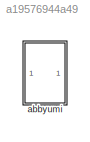
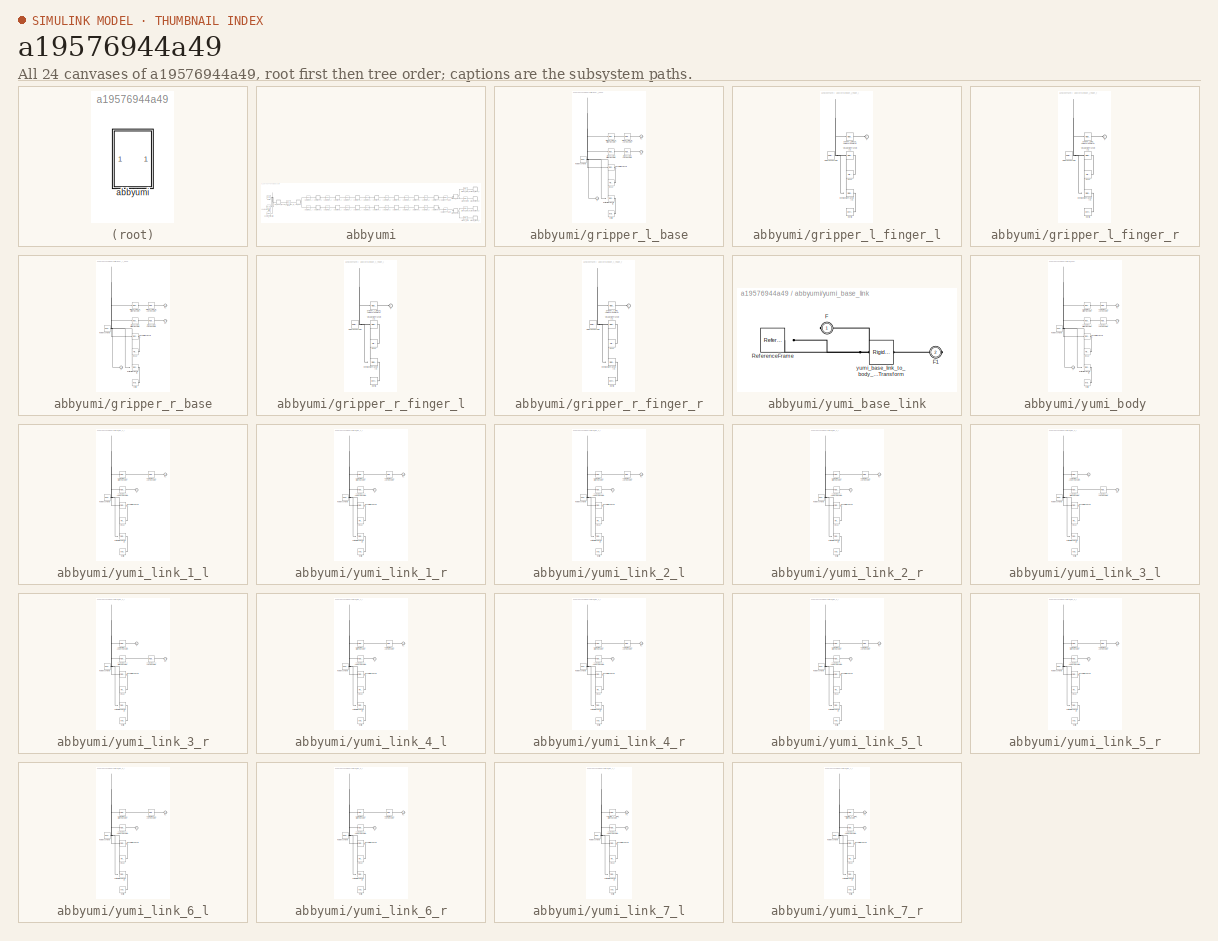
[diagram: thumbnail index - all 24 canvases of the model, root first then tree order]
MODEL slx_a19576944a49
KIND model
CONFIG AbsTol = auto
CONFIG EnableMultiTasking = off
CONFIG FixedStep = auto
CONFIG MaxStep = auto
CONFIG MinStep = auto
CONFIG RelTol = 1e-3
CONFIG SampleTimeConstraint = Unconstrained
CONFIG SolverName = VariableStepAuto
CONFIG StartTime = 0.0
CONFIG StopTime = 10.0
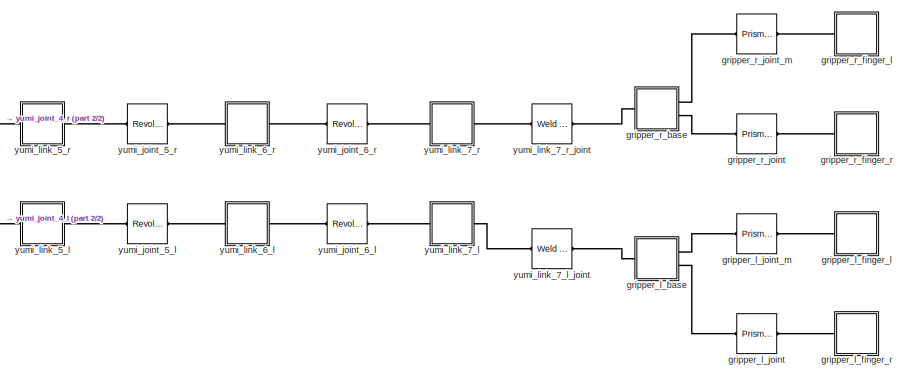
[diagram: abbyumi - part 1/2, right side, full height]
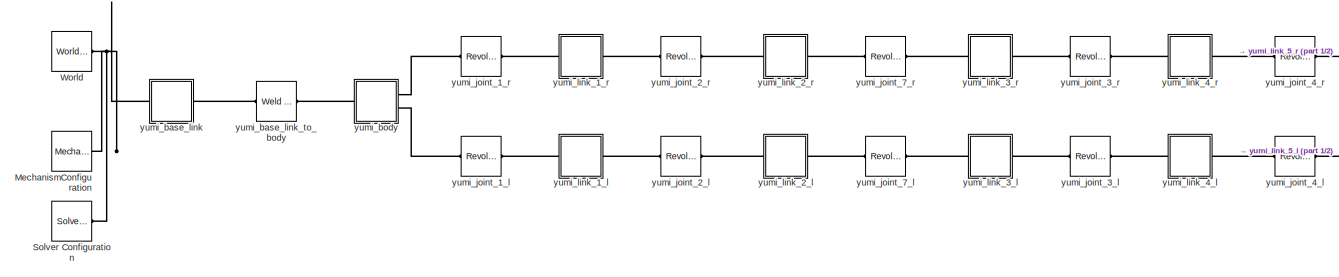
[diagram: abbyumi - part 2/2, middle left region]
BLOCK [SubSystem] abbyumi
  Ports = []
  RequestExecContextInheritance = off
BLOCK [Reference] abbyumi/MechanismConfiguration  REF=sm_lib/Utilities/Mechanism
Configuration
  Ports = [0, 0, 0, 0, 0, 0, 1]
  SourceBlock = sm_lib/Utilities/Mechanism\nConfiguration
  SourceProductBaseCode = MS
  SourceType = Mechanism\nConfiguration
BLOCK [Reference] abbyumi/Solver Configuration  REF=nesl_utility/Solver
Configuration
  Ports = [0, 0, 0, 0, 0, 0, 1]
  SourceBlock = nesl_utility/Solver\nConfiguration
  SourceProductBaseCode = SS
  SourceType = Solver\nConfiguration
BLOCK [Reference] abbyumi/World  REF=sm_lib/Frames and
Transforms/World Frame
  Ports = [0, 0, 0, 0, 0, 0, 1]
  SourceBlock = sm_lib/Frames and\nTransforms/World Frame
  SourceProductBaseCode = MS
  SourceType = World Frame
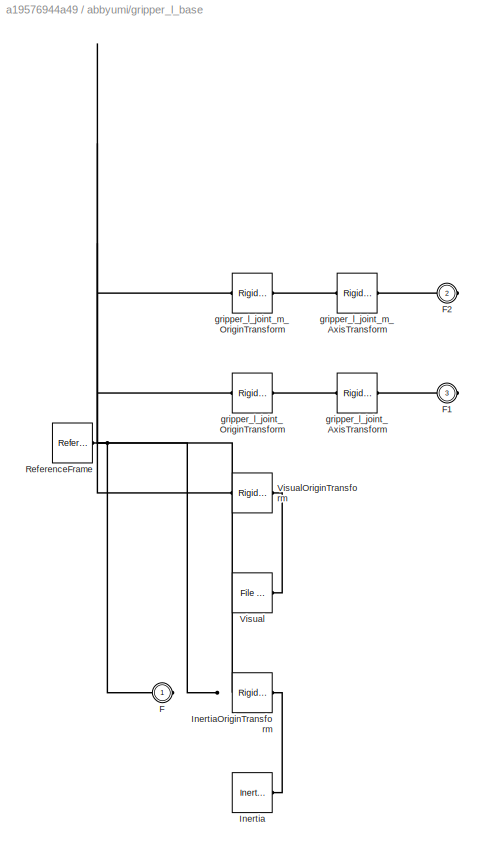
BLOCK [SubSystem] abbyumi/gripper_l_base
  Ports = [0, 0, 0, 0, 0, 1, 2]
  RequestExecContextInheritance = off
BLOCK [PMIOPort] abbyumi/gripper_l_base/F
  Side = Left
BLOCK [PMIOPort] abbyumi/gripper_l_base/F1
  Port = 3
  Side = Right
BLOCK [PMIOPort] abbyumi/gripper_l_base/F2
  Port = 2
  Side = Right
BLOCK [Reference] abbyumi/gripper_l_base/Inertia  REF=sm_lib/Body Elements/Inertia
  Ports = [0, 0, 0, 0, 0, 0, 1]
  SourceBlock = sm_lib/Body Elements/Inertia
  SourceProductBaseCode = MS
  SourceType = Inertia
BLOCK [Reference] abbyumi/gripper_l_base/InertiaOriginTransform  REF=sm_lib/Frames and
Transforms/Rigid
Transform
  Ports = [0, 0, 0, 0, 0, 1, 1]
  SourceBlock = sm_lib/Frames and\nTransforms/Rigid\nTransform
  SourceProductBaseCode = MS
  SourceType = Rigid\nTransform
BLOCK [Reference] abbyumi/gripper_l_base/ReferenceFrame  REF=sm_lib/Frames and
Transforms/Reference
Frame
  Ports = [0, 0, 0, 0, 0, 0, 1]
  SourceBlock = sm_lib/Frames and\nTransforms/Reference\nFrame
  SourceProductBaseCode = MS
  SourceType = Reference\nFrame
BLOCK [Reference] abbyumi/gripper_l_base/Visual  REF=sm_lib/Body Elements/File Solid
  Ports = [0, 0, 0, 0, 0, 0, 1]
  SourceBlock = sm_lib/Body Elements/File Solid
  SourceProductBaseCode = MS
  SourceType = File Solid
BLOCK [Reference] abbyumi/gripper_l_base/VisualOriginTransform  REF=sm_lib/Frames and
Transforms/Rigid
Transform
  Ports = [0, 0, 0, 0, 0, 1, 1]
  SourceBlock = sm_lib/Frames and\nTransforms/Rigid\nTransform
  SourceProductBaseCode = MS
  SourceType = Rigid\nTransform
BLOCK [Reference] abbyumi/gripper_l_base/gripper_l_joint_AxisTransform  REF=sm_lib/Frames and
Transforms/Rigid
Transform
  Ports = [0, 0, 0, 0, 0, 1, 1]
  SourceBlock = sm_lib/Frames and\nTransforms/Rigid\nTransform
  SourceProductBaseCode = MS
  SourceType = Rigid\nTransform
BLOCK [Reference] abbyumi/gripper_l_base/gripper_l_joint_OriginTransform  REF=sm_lib/Frames and
Transforms/Rigid
Transform
  Ports = [0, 0, 0, 0, 0, 1, 1]
  SourceBlock = sm_lib/Frames and\nTransforms/Rigid\nTransform
  SourceProductBaseCode = MS
  SourceType = Rigid\nTransform
BLOCK [Reference] abbyumi/gripper_l_base/gripper_l_joint_m_AxisTransform  REF=sm_lib/Frames and
Transforms/Rigid
Transform
  Ports = [0, 0, 0, 0, 0, 1, 1]
  SourceBlock = sm_lib/Frames and\nTransforms/Rigid\nTransform
  SourceProductBaseCode = MS
  SourceType = Rigid\nTransform
BLOCK [Reference] abbyumi/gripper_l_base/gripper_l_joint_m_OriginTransform  REF=sm_lib/Frames and
Transforms/Rigid
Transform
  Ports = [0, 0, 0, 0, 0, 1, 1]
  SourceBlock = sm_lib/Frames and\nTransforms/Rigid\nTransform
  SourceProductBaseCode = MS
  SourceType = Rigid\nTransform
BLOCK [SubSystem] abbyumi/gripper_l_finger_l
  Ports = [0, 0, 0, 0, 0, 1]
  RequestExecContextInheritance = off
BLOCK [PMIOPort] abbyumi/gripper_l_finger_l/F
  Side = Left
BLOCK [Reference] abbyumi/gripper_l_finger_l/Inertia  REF=sm_lib/Body Elements/Inertia
  Ports = [0, 0, 0, 0, 0, 0, 1]
  SourceBlock = sm_lib/Body Elements/Inertia
  SourceProductBaseCode = MS
  SourceType = Inertia
BLOCK [Reference] abbyumi/gripper_l_finger_l/InertiaOriginTransform  REF=sm_lib/Frames and
Transforms/Rigid
Transform
  Ports = [0, 0, 0, 0, 0, 1, 1]
  SourceBlock = sm_lib/Frames and\nTransforms/Rigid\nTransform
  SourceProductBaseCode = MS
  SourceType = Rigid\nTransform
BLOCK [Reference] abbyumi/gripper_l_finger_l/ReferenceFrame  REF=sm_lib/Frames and
Transforms/Reference
Frame
  Ports = [0, 0, 0, 0, 0, 0, 1]
  SourceBlock = sm_lib/Frames and\nTransforms/Reference\nFrame
  SourceProductBaseCode = MS
  SourceType = Reference\nFrame
BLOCK [Reference] abbyumi/gripper_l_finger_l/Visual  REF=sm_lib/Body Elements/File Solid
  Ports = [0, 0, 0, 0, 0, 0, 1]
  SourceBlock = sm_lib/Body Elements/File Solid
  SourceProductBaseCode = MS
  SourceType = File Solid
BLOCK [Reference] abbyumi/gripper_l_finger_l/VisualOriginTransform  REF=sm_lib/Frames and
Transforms/Rigid
Transform
  Ports = [0, 0, 0, 0, 0, 1, 1]
  SourceBlock = sm_lib/Frames and\nTransforms/Rigid\nTransform
  SourceProductBaseCode = MS
  SourceType = Rigid\nTransform
BLOCK [Reference] abbyumi/gripper_l_finger_l/gripper_l_joint_m_AxisInvTransform  REF=sm_lib/Frames and
Transforms/Rigid
Transform
  Ports = [0, 0, 0, 0, 0, 1, 1]
  SourceBlock = sm_lib/Frames and\nTransforms/Rigid\nTransform
  SourceProductBaseCode = MS
  SourceType = Rigid\nTransform
BLOCK [SubSystem] abbyumi/gripper_l_finger_r
  Ports = [0, 0, 0, 0, 0, 1]
  RequestExecContextInheritance = off
BLOCK [PMIOPort] abbyumi/gripper_l_finger_r/F
  Side = Left
BLOCK [Reference] abbyumi/gripper_l_finger_r/Inertia  REF=sm_lib/Body Elements/Inertia
  Ports = [0, 0, 0, 0, 0, 0, 1]
  SourceBlock = sm_lib/Body Elements/Inertia
  SourceProductBaseCode = MS
  SourceType = Inertia
BLOCK [Reference] abbyumi/gripper_l_finger_r/InertiaOriginTransform  REF=sm_lib/Frames and
Transforms/Rigid
Transform
  Ports = [0, 0, 0, 0, 0, 1, 1]
  SourceBlock = sm_lib/Frames and\nTransforms/Rigid\nTransform
  SourceProductBaseCode = MS
  SourceType = Rigid\nTransform
BLOCK [Reference] abbyumi/gripper_l_finger_r/ReferenceFrame  REF=sm_lib/Frames and
Transforms/Reference
Frame
  Ports = [0, 0, 0, 0, 0, 0, 1]
  SourceBlock = sm_lib/Frames and\nTransforms/Reference\nFrame
  SourceProductBaseCode = MS
  SourceType = Reference\nFrame
BLOCK [Reference] abbyumi/gripper_l_finger_r/Visual  REF=sm_lib/Body Elements/File Solid
  Ports = [0, 0, 0, 0, 0, 0, 1]
  SourceBlock = sm_lib/Body Elements/File Solid
  SourceProductBaseCode = MS
  SourceType = File Solid
BLOCK [Reference] abbyumi/gripper_l_finger_r/VisualOriginTransform  REF=sm_lib/Frames and
Transforms/Rigid
Transform
  Ports = [0, 0, 0, 0, 0, 1, 1]
  SourceBlock = sm_lib/Frames and\nTransforms/Rigid\nTransform
  SourceProductBaseCode = MS
  SourceType = Rigid\nTransform
BLOCK [Reference] abbyumi/gripper_l_finger_r/gripper_l_joint_AxisInvTransform  REF=sm_lib/Frames and
Transforms/Rigid
Transform
  Ports = [0, 0, 0, 0, 0, 1, 1]
  SourceBlock = sm_lib/Frames and\nTransforms/Rigid\nTransform
  SourceProductBaseCode = MS
  SourceType = Rigid\nTransform
BLOCK [Reference] abbyumi/gripper_l_joint  REF=sm_lib/Joints/Prismatic
Joint
  Ports = [0, 0, 0, 0, 0, 1, 1]
  SourceBlock = sm_lib/Joints/Prismatic\nJoint
  SourceProductBaseCode = MS
  SourceType = Prismatic\nJoint
BLOCK [Reference] abbyumi/gripper_l_joint_m  REF=sm_lib/Joints/Prismatic
Joint
  Ports = [0, 0, 0, 0, 0, 1, 1]
  SourceBlock = sm_lib/Joints/Prismatic\nJoint
  SourceProductBaseCode = MS
  SourceType = Prismatic\nJoint
BLOCK [SubSystem] abbyumi/gripper_r_base
  Ports = [0, 0, 0, 0, 0, 1, 2]
  RequestExecContextInheritance = off
BLOCK [PMIOPort] abbyumi/gripper_r_base/F
  Side = Left
BLOCK [PMIOPort] abbyumi/gripper_r_base/F1
  Port = 3
  Side = Right
BLOCK [PMIOPort] abbyumi/gripper_r_base/F2
  Port = 2
  Side = Right
BLOCK [Reference] abbyumi/gripper_r_base/Inertia  REF=sm_lib/Body Elements/Inertia
  Ports = [0, 0, 0, 0, 0, 0, 1]
  SourceBlock = sm_lib/Body Elements/Inertia
  SourceProductBaseCode = MS
  SourceType = Inertia
BLOCK [Reference] abbyumi/gripper_r_base/InertiaOriginTransform  REF=sm_lib/Frames and
Transforms/Rigid
Transform
  Ports = [0, 0, 0, 0, 0, 1, 1]
  SourceBlock = sm_lib/Frames and\nTransforms/Rigid\nTransform
  SourceProductBaseCode = MS
  SourceType = Rigid\nTransform
BLOCK [Reference] abbyumi/gripper_r_base/ReferenceFrame  REF=sm_lib/Frames and
Transforms/Reference
Frame
  Ports = [0, 0, 0, 0, 0, 0, 1]
  SourceBlock = sm_lib/Frames and\nTransforms/Reference\nFrame
  SourceProductBaseCode = MS
  SourceType = Reference\nFrame
BLOCK [Reference] abbyumi/gripper_r_base/Visual  REF=sm_lib/Body Elements/File Solid
  Ports = [0, 0, 0, 0, 0, 0, 1]
  SourceBlock = sm_lib/Body Elements/File Solid
  SourceProductBaseCode = MS
  SourceType = File Solid
BLOCK [Reference] abbyumi/gripper_r_base/VisualOriginTransform  REF=sm_lib/Frames and
Transforms/Rigid
Transform
  Ports = [0, 0, 0, 0, 0, 1, 1]
  SourceBlock = sm_lib/Frames and\nTransforms/Rigid\nTransform
  SourceProductBaseCode = MS
  SourceType = Rigid\nTransform
BLOCK [Reference] abbyumi/gripper_r_base/gripper_r_joint_AxisTransform  REF=sm_lib/Frames and
Transforms/Rigid
Transform
  Ports = [0, 0, 0, 0, 0, 1, 1]
  SourceBlock = sm_lib/Frames and\nTransforms/Rigid\nTransform
  SourceProductBaseCode = MS
  SourceType = Rigid\nTransform
BLOCK [Reference] abbyumi/gripper_r_base/gripper_r_joint_OriginTransform  REF=sm_lib/Frames and
Transforms/Rigid
Transform
  Ports = [0, 0, 0, 0, 0, 1, 1]
  SourceBlock = sm_lib/Frames and\nTransforms/Rigid\nTransform
  SourceProductBaseCode = MS
  SourceType = Rigid\nTransform
BLOCK [Reference] abbyumi/gripper_r_base/gripper_r_joint_m_AxisTransform  REF=sm_lib/Frames and
Transforms/Rigid
Transform
  Ports = [0, 0, 0, 0, 0, 1, 1]
  SourceBlock = sm_lib/Frames and\nTransforms/Rigid\nTransform
  SourceProductBaseCode = MS
  SourceType = Rigid\nTransform
BLOCK [Reference] abbyumi/gripper_r_base/gripper_r_joint_m_OriginTransform  REF=sm_lib/Frames and
Transforms/Rigid
Transform
  Ports = [0, 0, 0, 0, 0, 1, 1]
  SourceBlock = sm_lib/Frames and\nTransforms/Rigid\nTransform
  SourceProductBaseCode = MS
  SourceType = Rigid\nTransform
BLOCK [SubSystem] abbyumi/gripper_r_finger_l
  Ports = [0, 0, 0, 0, 0, 1]
  RequestExecContextInheritance = off
BLOCK [PMIOPort] abbyumi/gripper_r_finger_l/F
  Side = Left
BLOCK [Reference] abbyumi/gripper_r_finger_l/Inertia  REF=sm_lib/Body Elements/Inertia
  Ports = [0, 0, 0, 0, 0, 0, 1]
  SourceBlock = sm_lib/Body Elements/Inertia
  SourceProductBaseCode = MS
  SourceType = Inertia
BLOCK [Reference] abbyumi/gripper_r_finger_l/InertiaOriginTransform  REF=sm_lib/Frames and
Transforms/Rigid
Transform
  Ports = [0, 0, 0, 0, 0, 1, 1]
  SourceBlock = sm_lib/Frames and\nTransforms/Rigid\nTransform
  SourceProductBaseCode = MS
  SourceType = Rigid\nTransform
BLOCK [Reference] abbyumi/gripper_r_finger_l/ReferenceFrame  REF=sm_lib/Frames and
Transforms/Reference
Frame
  Ports = [0, 0, 0, 0, 0, 0, 1]
  SourceBlock = sm_lib/Frames and\nTransforms/Reference\nFrame
  SourceProductBaseCode = MS
  SourceType = Reference\nFrame
BLOCK [Reference] abbyumi/gripper_r_finger_l/Visual  REF=sm_lib/Body Elements/File Solid
  Ports = [0, 0, 0, 0, 0, 0, 1]
  SourceBlock = sm_lib/Body Elements/File Solid
  SourceProductBaseCode = MS
  SourceType = File Solid
BLOCK [Reference] abbyumi/gripper_r_finger_l/VisualOriginTransform  REF=sm_lib/Frames and
Transforms/Rigid
Transform
  Ports = [0, 0, 0, 0, 0, 1, 1]
  SourceBlock = sm_lib/Frames and\nTransforms/Rigid\nTransform
  SourceProductBaseCode = MS
  SourceType = Rigid\nTransform
BLOCK [Reference] abbyumi/gripper_r_finger_l/gripper_r_joint_m_AxisInvTransform  REF=sm_lib/Frames and
Transforms/Rigid
Transform
  Ports = [0, 0, 0, 0, 0, 1, 1]
  SourceBlock = sm_lib/Frames and\nTransforms/Rigid\nTransform
  SourceProductBaseCode = MS
  SourceType = Rigid\nTransform
BLOCK [SubSystem] abbyumi/gripper_r_finger_r
  Ports = [0, 0, 0, 0, 0, 1]
  RequestExecContextInheritance = off
BLOCK [PMIOPort] abbyumi/gripper_r_finger_r/F
  Side = Left
BLOCK [Reference] abbyumi/gripper_r_finger_r/Inertia  REF=sm_lib/Body Elements/Inertia
  Ports = [0, 0, 0, 0, 0, 0, 1]
  SourceBlock = sm_lib/Body Elements/Inertia
  SourceProductBaseCode = MS
  SourceType = Inertia
BLOCK [Reference] abbyumi/gripper_r_finger_r/InertiaOriginTransform  REF=sm_lib/Frames and
Transforms/Rigid
Transform
  Ports = [0, 0, 0, 0, 0, 1, 1]
  SourceBlock = sm_lib/Frames and\nTransforms/Rigid\nTransform
  SourceProductBaseCode = MS
  SourceType = Rigid\nTransform
BLOCK [Reference] abbyumi/gripper_r_finger_r/ReferenceFrame  REF=sm_lib/Frames and
Transforms/Reference
Frame
  Ports = [0, 0, 0, 0, 0, 0, 1]
  SourceBlock = sm_lib/Frames and\nTransforms/Reference\nFrame
  SourceProductBaseCode = MS
  SourceType = Reference\nFrame
BLOCK [Reference] abbyumi/gripper_r_finger_r/Visual  REF=sm_lib/Body Elements/File Solid
  Ports = [0, 0, 0, 0, 0, 0, 1]
  SourceBlock = sm_lib/Body Elements/File Solid
  SourceProductBaseCode = MS
  SourceType = File Solid
BLOCK [Reference] abbyumi/gripper_r_finger_r/VisualOriginTransform  REF=sm_lib/Frames and
Transforms/Rigid
Transform
  Ports = [0, 0, 0, 0, 0, 1, 1]
  SourceBlock = sm_lib/Frames and\nTransforms/Rigid\nTransform
  SourceProductBaseCode = MS
  SourceType = Rigid\nTransform
BLOCK [Reference] abbyumi/gripper_r_finger_r/gripper_r_joint_AxisInvTransform  REF=sm_lib/Frames and
Transforms/Rigid
Transform
  Ports = [0, 0, 0, 0, 0, 1, 1]
  SourceBlock = sm_lib/Frames and\nTransforms/Rigid\nTransform
  SourceProductBaseCode = MS
  SourceType = Rigid\nTransform
BLOCK [Reference] abbyumi/gripper_r_joint  REF=sm_lib/Joints/Prismatic
Joint
  Ports = [0, 0, 0, 0, 0, 1, 1]
  SourceBlock = sm_lib/Joints/Prismatic\nJoint
  SourceProductBaseCode = MS
  SourceType = Prismatic\nJoint
BLOCK [Reference] abbyumi/gripper_r_joint_m  REF=sm_lib/Joints/Prismatic
Joint
  Ports = [0, 0, 0, 0, 0, 1, 1]
  SourceBlock = sm_lib/Joints/Prismatic\nJoint
  SourceProductBaseCode = MS
  SourceType = Prismatic\nJoint
BLOCK [SubSystem] abbyumi/yumi_base_link
  Ports = [0, 0, 0, 0, 0, 1, 1]
  RequestExecContextInheritance = off
BLOCK [PMIOPort] abbyumi/yumi_base_link/F
  Side = Left
BLOCK [PMIOPort] abbyumi/yumi_base_link/F1
  Port = 2
  Side = Right
BLOCK [Reference] abbyumi/yumi_base_link/ReferenceFrame  REF=sm_lib/Frames and
Transforms/Reference
Frame
  Ports = [0, 0, 0, 0, 0, 0, 1]
  SourceBlock = sm_lib/Frames and\nTransforms/Reference\nFrame
  SourceProductBaseCode = MS
  SourceType = Reference\nFrame
BLOCK [Reference] abbyumi/yumi_base_link/yumi_base_link_to_body_OriginTransform  REF=sm_lib/Frames and
Transforms/Rigid
Transform
  Ports = [0, 0, 0, 0, 0, 1, 1]
  SourceBlock = sm_lib/Frames and\nTransforms/Rigid\nTransform
  SourceProductBaseCode = MS
  SourceType = Rigid\nTransform
BLOCK [Reference] abbyumi/yumi_base_link_to_body  REF=sm_lib/Joints/Weld Joint
  Ports = [0, 0, 0, 0, 0, 1, 1]
  SourceBlock = sm_lib/Joints/Weld Joint
  SourceProductBaseCode = MS
  SourceType = Weld Joint
BLOCK [SubSystem] abbyumi/yumi_body
  Ports = [0, 0, 0, 0, 0, 1, 2]
  RequestExecContextInheritance = off
BLOCK [PMIOPort] abbyumi/yumi_body/F
  Side = Left
BLOCK [PMIOPort] abbyumi/yumi_body/F1
  Port = 3
  Side = Right
BLOCK [PMIOPort] abbyumi/yumi_body/F2
  Port = 2
  Side = Right
BLOCK [Reference] abbyumi/yumi_body/Inertia  REF=sm_lib/Body Elements/Inertia
  Ports = [0, 0, 0, 0, 0, 0, 1]
  SourceBlock = sm_lib/Body Elements/Inertia
  SourceProductBaseCode = MS
  SourceType = Inertia
BLOCK [Reference] abbyumi/yumi_body/InertiaOriginTransform  REF=sm_lib/Frames and
Transforms/Rigid
Transform
  Ports = [0, 0, 0, 0, 0, 1, 1]
  SourceBlock = sm_lib/Frames and\nTransforms/Rigid\nTransform
  SourceProductBaseCode = MS
  SourceType = Rigid\nTransform
BLOCK [Reference] abbyumi/yumi_body/ReferenceFrame  REF=sm_lib/Frames and
Transforms/Reference
Frame
  Ports = [0, 0, 0, 0, 0, 0, 1]
  SourceBlock = sm_lib/Frames and\nTransforms/Reference\nFrame
  SourceProductBaseCode = MS
  SourceType = Reference\nFrame
BLOCK [Reference] abbyumi/yumi_body/Visual  REF=sm_lib/Body Elements/File Solid
  Ports = [0, 0, 0, 0, 0, 0, 1]
  SourceBlock = sm_lib/Body Elements/File Solid
  SourceProductBaseCode = MS
  SourceType = File Solid
BLOCK [Reference] abbyumi/yumi_body/VisualOriginTransform  REF=sm_lib/Frames and
Transforms/Rigid
Transform
  Ports = [0, 0, 0, 0, 0, 1, 1]
  SourceBlock = sm_lib/Frames and\nTransforms/Rigid\nTransform
  SourceProductBaseCode = MS
  SourceType = Rigid\nTransform
BLOCK [Reference] abbyumi/yumi_body/yumi_joint_1_l_AxisTransform  REF=sm_lib/Frames and
Transforms/Rigid
Transform
  Ports = [0, 0, 0, 0, 0, 1, 1]
  SourceBlock = sm_lib/Frames and\nTransforms/Rigid\nTransform
  SourceProductBaseCode = MS
  SourceType = Rigid\nTransform
BLOCK [Reference] abbyumi/yumi_body/yumi_joint_1_l_OriginTransform  REF=sm_lib/Frames and
Transforms/Rigid
Transform
  Ports = [0, 0, 0, 0, 0, 1, 1]
  SourceBlock = sm_lib/Frames and\nTransforms/Rigid\nTransform
  SourceProductBaseCode = MS
  SourceType = Rigid\nTransform
BLOCK [Reference] abbyumi/yumi_body/yumi_joint_1_r_AxisTransform  REF=sm_lib/Frames and
Transforms/Rigid
Transform
  Ports = [0, 0, 0, 0, 0, 1, 1]
  SourceBlock = sm_lib/Frames and\nTransforms/Rigid\nTransform
  SourceProductBaseCode = MS
  SourceType = Rigid\nTransform
BLOCK [Reference] abbyumi/yumi_body/yumi_joint_1_r_OriginTransform  REF=sm_lib/Frames and
Transforms/Rigid
Transform
  Ports = [0, 0, 0, 0, 0, 1, 1]
  SourceBlock = sm_lib/Frames and\nTransforms/Rigid\nTransform
  SourceProductBaseCode = MS
  SourceType = Rigid\nTransform
BLOCK [Reference] abbyumi/yumi_joint_1_l  REF=sm_lib/Joints/Revolute Joint
  Ports = [0, 0, 0, 0, 0, 1, 1]
  SourceBlock = sm_lib/Joints/Revolute Joint
  SourceProductBaseCode = MS
  SourceType = Revolute Joint
BLOCK [Reference] abbyumi/yumi_joint_1_r  REF=sm_lib/Joints/Revolute Joint
  Ports = [0, 0, 0, 0, 0, 1, 1]
  SourceBlock = sm_lib/Joints/Revolute Joint
  SourceProductBaseCode = MS
  SourceType = Revolute Joint
BLOCK [Reference] abbyumi/yumi_joint_2_l  REF=sm_lib/Joints/Revolute Joint
  Ports = [0, 0, 0, 0, 0, 1, 1]
  SourceBlock = sm_lib/Joints/Revolute Joint
  SourceProductBaseCode = MS
  SourceType = Revolute Joint
BLOCK [Reference] abbyumi/yumi_joint_2_r  REF=sm_lib/Joints/Revolute Joint
  Ports = [0, 0, 0, 0, 0, 1, 1]
  SourceBlock = sm_lib/Joints/Revolute Joint
  SourceProductBaseCode = MS
  SourceType = Revolute Joint
BLOCK [Reference] abbyumi/yumi_joint_3_l  REF=sm_lib/Joints/Revolute Joint
  Ports = [0, 0, 0, 0, 0, 1, 1]
  SourceBlock = sm_lib/Joints/Revolute Joint
  SourceProductBaseCode = MS
  SourceType = Revolute Joint
BLOCK [Reference] abbyumi/yumi_joint_3_r  REF=sm_lib/Joints/Revolute Joint
  Ports = [0, 0, 0, 0, 0, 1, 1]
  SourceBlock = sm_lib/Joints/Revolute Joint
  SourceProductBaseCode = MS
  SourceType = Revolute Joint
BLOCK [Reference] abbyumi/yumi_joint_4_l  REF=sm_lib/Joints/Revolute Joint
  Ports = [0, 0, 0, 0, 0, 1, 1]
  SourceBlock = sm_lib/Joints/Revolute Joint
  SourceProductBaseCode = MS
  SourceType = Revolute Joint
BLOCK [Reference] abbyumi/yumi_joint_4_r  REF=sm_lib/Joints/Revolute Joint
  Ports = [0, 0, 0, 0, 0, 1, 1]
  SourceBlock = sm_lib/Joints/Revolute Joint
  SourceProductBaseCode = MS
  SourceType = Revolute Joint
BLOCK [Reference] abbyumi/yumi_joint_5_l  REF=sm_lib/Joints/Revolute Joint
  Ports = [0, 0, 0, 0, 0, 1, 1]
  SourceBlock = sm_lib/Joints/Revolute Joint
  SourceProductBaseCode = MS
  SourceType = Revolute Joint
BLOCK [Reference] abbyumi/yumi_joint_5_r  REF=sm_lib/Joints/Revolute Joint
  Ports = [0, 0, 0, 0, 0, 1, 1]
  SourceBlock = sm_lib/Joints/Revolute Joint
  SourceProductBaseCode = MS
  SourceType = Revolute Joint
BLOCK [Reference] abbyumi/yumi_joint_6_l  REF=sm_lib/Joints/Revolute Joint
  Ports = [0, 0, 0, 0, 0, 1, 1]
  SourceBlock = sm_lib/Joints/Revolute Joint
  SourceProductBaseCode = MS
  SourceType = Revolute Joint
BLOCK [Reference] abbyumi/yumi_joint_6_r  REF=sm_lib/Joints/Revolute Joint
  Ports = [0, 0, 0, 0, 0, 1, 1]
  SourceBlock = sm_lib/Joints/Revolute Joint
  SourceProductBaseCode = MS
  SourceType = Revolute Joint
BLOCK [Reference] abbyumi/yumi_joint_7_l  REF=sm_lib/Joints/Revolute Joint
  Ports = [0, 0, 0, 0, 0, 1, 1]
  SourceBlock = sm_lib/Joints/Revolute Joint
  SourceProductBaseCode = MS
  SourceType = Revolute Joint
BLOCK [Reference] abbyumi/yumi_joint_7_r  REF=sm_lib/Joints/Revolute Joint
  Ports = [0, 0, 0, 0, 0, 1, 1]
  SourceBlock = sm_lib/Joints/Revolute Joint
  SourceProductBaseCode = MS
  SourceType = Revolute Joint
BLOCK [SubSystem] abbyumi/yumi_link_1_l
  Ports = [0, 0, 0, 0, 0, 1, 1]
  RequestExecContextInheritance = off
BLOCK [PMIOPort] abbyumi/yumi_link_1_l/F
  Side = Left
BLOCK [PMIOPort] abbyumi/yumi_link_1_l/F1
  Port = 2
  Side = Right
BLOCK [Reference] abbyumi/yumi_link_1_l/Inertia  REF=sm_lib/Body Elements/Inertia
  Ports = [0, 0, 0, 0, 0, 0, 1]
  SourceBlock = sm_lib/Body Elements/Inertia
  SourceProductBaseCode = MS
  SourceType = Inertia
BLOCK [Reference] abbyumi/yumi_link_1_l/InertiaOriginTransform  REF=sm_lib/Frames and
Transforms/Rigid
Transform
  Ports = [0, 0, 0, 0, 0, 1, 1]
  SourceBlock = sm_lib/Frames and\nTransforms/Rigid\nTransform
  SourceProductBaseCode = MS
  SourceType = Rigid\nTransform
BLOCK [Reference] abbyumi/yumi_link_1_l/ReferenceFrame  REF=sm_lib/Frames and
Transforms/Reference
Frame
  Ports = [0, 0, 0, 0, 0, 0, 1]
  SourceBlock = sm_lib/Frames and\nTransforms/Reference\nFrame
  SourceProductBaseCode = MS
  SourceType = Reference\nFrame
BLOCK [Reference] abbyumi/yumi_link_1_l/Visual  REF=sm_lib/Body Elements/File Solid
  Ports = [0, 0, 0, 0, 0, 0, 1]
  SourceBlock = sm_lib/Body Elements/File Solid
  SourceProductBaseCode = MS
  SourceType = File Solid
BLOCK [Reference] abbyumi/yumi_link_1_l/VisualOriginTransform  REF=sm_lib/Frames and
Transforms/Rigid
Transform
  Ports = [0, 0, 0, 0, 0, 1, 1]
  SourceBlock = sm_lib/Frames and\nTransforms/Rigid\nTransform
  SourceProductBaseCode = MS
  SourceType = Rigid\nTransform
BLOCK [Reference] abbyumi/yumi_link_1_l/yumi_joint_1_l_AxisInvTransform  REF=sm_lib/Frames and
Transforms/Rigid
Transform
  Ports = [0, 0, 0, 0, 0, 1, 1]
  SourceBlock = sm_lib/Frames and\nTransforms/Rigid\nTransform
  SourceProductBaseCode = MS
  SourceType = Rigid\nTransform
BLOCK [Reference] abbyumi/yumi_link_1_l/yumi_joint_2_l_AxisTransform  REF=sm_lib/Frames and
Transforms/Rigid
Transform
  Ports = [0, 0, 0, 0, 0, 1, 1]
  SourceBlock = sm_lib/Frames and\nTransforms/Rigid\nTransform
  SourceProductBaseCode = MS
  SourceType = Rigid\nTransform
BLOCK [Reference] abbyumi/yumi_link_1_l/yumi_joint_2_l_OriginTransform  REF=sm_lib/Frames and
Transforms/Rigid
Transform
  Ports = [0, 0, 0, 0, 0, 1, 1]
  SourceBlock = sm_lib/Frames and\nTransforms/Rigid\nTransform
  SourceProductBaseCode = MS
  SourceType = Rigid\nTransform
BLOCK [SubSystem] abbyumi/yumi_link_1_r
  Ports = [0, 0, 0, 0, 0, 1, 1]
  RequestExecContextInheritance = off
BLOCK [PMIOPort] abbyumi/yumi_link_1_r/F
  Side = Left
BLOCK [PMIOPort] abbyumi/yumi_link_1_r/F1
  Port = 2
  Side = Right
BLOCK [Reference] abbyumi/yumi_link_1_r/Inertia  REF=sm_lib/Body Elements/Inertia
  Ports = [0, 0, 0, 0, 0, 0, 1]
  SourceBlock = sm_lib/Body Elements/Inertia
  SourceProductBaseCode = MS
  SourceType = Inertia
BLOCK [Reference] abbyumi/yumi_link_1_r/InertiaOriginTransform  REF=sm_lib/Frames and
Transforms/Rigid
Transform
  Ports = [0, 0, 0, 0, 0, 1, 1]
  SourceBlock = sm_lib/Frames and\nTransforms/Rigid\nTransform
  SourceProductBaseCode = MS
  SourceType = Rigid\nTransform
BLOCK [Reference] abbyumi/yumi_link_1_r/ReferenceFrame  REF=sm_lib/Frames and
Transforms/Reference
Frame
  Ports = [0, 0, 0, 0, 0, 0, 1]
  SourceBlock = sm_lib/Frames and\nTransforms/Reference\nFrame
  SourceProductBaseCode = MS
  SourceType = Reference\nFrame
BLOCK [Reference] abbyumi/yumi_link_1_r/Visual  REF=sm_lib/Body Elements/File Solid
  Ports = [0, 0, 0, 0, 0, 0, 1]
  SourceBlock = sm_lib/Body Elements/File Solid
  SourceProductBaseCode = MS
  SourceType = File Solid
BLOCK [Reference] abbyumi/yumi_link_1_r/VisualOriginTransform  REF=sm_lib/Frames and
Transforms/Rigid
Transform
  Ports = [0, 0, 0, 0, 0, 1, 1]
  SourceBlock = sm_lib/Frames and\nTransforms/Rigid\nTransform
  SourceProductBaseCode = MS
  SourceType = Rigid\nTransform
BLOCK [Reference] abbyumi/yumi_link_1_r/yumi_joint_1_r_AxisInvTransform  REF=sm_lib/Frames and
Transforms/Rigid
Transform
  Ports = [0, 0, 0, 0, 0, 1, 1]
  SourceBlock = sm_lib/Frames and\nTransforms/Rigid\nTransform
  SourceProductBaseCode = MS
  SourceType = Rigid\nTransform
BLOCK [Reference] abbyumi/yumi_link_1_r/yumi_joint_2_r_AxisTransform  REF=sm_lib/Frames and
Transforms/Rigid
Transform
  Ports = [0, 0, 0, 0, 0, 1, 1]
  SourceBlock = sm_lib/Frames and\nTransforms/Rigid\nTransform
  SourceProductBaseCode = MS
  SourceType = Rigid\nTransform
BLOCK [Reference] abbyumi/yumi_link_1_r/yumi_joint_2_r_OriginTransform  REF=sm_lib/Frames and
Transforms/Rigid
Transform
  Ports = [0, 0, 0, 0, 0, 1, 1]
  SourceBlock = sm_lib/Frames and\nTransforms/Rigid\nTransform
  SourceProductBaseCode = MS
  SourceType = Rigid\nTransform
BLOCK [SubSystem] abbyumi/yumi_link_2_l
  Ports = [0, 0, 0, 0, 0, 1, 1]
  RequestExecContextInheritance = off
BLOCK [PMIOPort] abbyumi/yumi_link_2_l/F
  Side = Left
BLOCK [PMIOPort] abbyumi/yumi_link_2_l/F1
  Port = 2
  Side = Right
BLOCK [Reference] abbyumi/yumi_link_2_l/Inertia  REF=sm_lib/Body Elements/Inertia
  Ports = [0, 0, 0, 0, 0, 0, 1]
  SourceBlock = sm_lib/Body Elements/Inertia
  SourceProductBaseCode = MS
  SourceType = Inertia
BLOCK [Reference] abbyumi/yumi_link_2_l/InertiaOriginTransform  REF=sm_lib/Frames and
Transforms/Rigid
Transform
  Ports = [0, 0, 0, 0, 0, 1, 1]
  SourceBlock = sm_lib/Frames and\nTransforms/Rigid\nTransform
  SourceProductBaseCode = MS
  SourceType = Rigid\nTransform
BLOCK [Reference] abbyumi/yumi_link_2_l/ReferenceFrame  REF=sm_lib/Frames and
Transforms/Reference
Frame
  Ports = [0, 0, 0, 0, 0, 0, 1]
  SourceBlock = sm_lib/Frames and\nTransforms/Reference\nFrame
  SourceProductBaseCode = MS
  SourceType = Reference\nFrame
BLOCK [Reference] abbyumi/yumi_link_2_l/Visual  REF=sm_lib/Body Elements/File Solid
  Ports = [0, 0, 0, 0, 0, 0, 1]
  SourceBlock = sm_lib/Body Elements/File Solid
  SourceProductBaseCode = MS
  SourceType = File Solid
BLOCK [Reference] abbyumi/yumi_link_2_l/VisualOriginTransform  REF=sm_lib/Frames and
Transforms/Rigid
Transform
  Ports = [0, 0, 0, 0, 0, 1, 1]
  SourceBlock = sm_lib/Frames and\nTransforms/Rigid\nTransform
  SourceProductBaseCode = MS
  SourceType = Rigid\nTransform
BLOCK [Reference] abbyumi/yumi_link_2_l/yumi_joint_2_l_AxisInvTransform  REF=sm_lib/Frames and
Transforms/Rigid
Transform
  Ports = [0, 0, 0, 0, 0, 1, 1]
  SourceBlock = sm_lib/Frames and\nTransforms/Rigid\nTransform
  SourceProductBaseCode = MS
  SourceType = Rigid\nTransform
BLOCK [Reference] abbyumi/yumi_link_2_l/yumi_joint_7_l_AxisTransform  REF=sm_lib/Frames and
Transforms/Rigid
Transform
  Ports = [0, 0, 0, 0, 0, 1, 1]
  SourceBlock = sm_lib/Frames and\nTransforms/Rigid\nTransform
  SourceProductBaseCode = MS
  SourceType = Rigid\nTransform
BLOCK [Reference] abbyumi/yumi_link_2_l/yumi_joint_7_l_OriginTransform  REF=sm_lib/Frames and
Transforms/Rigid
Transform
  Ports = [0, 0, 0, 0, 0, 1, 1]
  SourceBlock = sm_lib/Frames and\nTransforms/Rigid\nTransform
  SourceProductBaseCode = MS
  SourceType = Rigid\nTransform
BLOCK [SubSystem] abbyumi/yumi_link_2_r
  Ports = [0, 0, 0, 0, 0, 1, 1]
  RequestExecContextInheritance = off
BLOCK [PMIOPort] abbyumi/yumi_link_2_r/F
  Side = Left
BLOCK [PMIOPort] abbyumi/yumi_link_2_r/F1
  Port = 2
  Side = Right
BLOCK [Reference] abbyumi/yumi_link_2_r/Inertia  REF=sm_lib/Body Elements/Inertia
  Ports = [0, 0, 0, 0, 0, 0, 1]
  SourceBlock = sm_lib/Body Elements/Inertia
  SourceProductBaseCode = MS
  SourceType = Inertia
BLOCK [Reference] abbyumi/yumi_link_2_r/InertiaOriginTransform  REF=sm_lib/Frames and
Transforms/Rigid
Transform
  Ports = [0, 0, 0, 0, 0, 1, 1]
  SourceBlock = sm_lib/Frames and\nTransforms/Rigid\nTransform
  SourceProductBaseCode = MS
  SourceType = Rigid\nTransform
BLOCK [Reference] abbyumi/yumi_link_2_r/ReferenceFrame  REF=sm_lib/Frames and
Transforms/Reference
Frame
  Ports = [0, 0, 0, 0, 0, 0, 1]
  SourceBlock = sm_lib/Frames and\nTransforms/Reference\nFrame
  SourceProductBaseCode = MS
  SourceType = Reference\nFrame
BLOCK [Reference] abbyumi/yumi_link_2_r/Visual  REF=sm_lib/Body Elements/File Solid
  Ports = [0, 0, 0, 0, 0, 0, 1]
  SourceBlock = sm_lib/Body Elements/File Solid
  SourceProductBaseCode = MS
  SourceType = File Solid
BLOCK [Reference] abbyumi/yumi_link_2_r/VisualOriginTransform  REF=sm_lib/Frames and
Transforms/Rigid
Transform
  Ports = [0, 0, 0, 0, 0, 1, 1]
  SourceBlock = sm_lib/Frames and\nTransforms/Rigid\nTransform
  SourceProductBaseCode = MS
  SourceType = Rigid\nTransform
BLOCK [Reference] abbyumi/yumi_link_2_r/yumi_joint_2_r_AxisInvTransform  REF=sm_lib/Frames and
Transforms/Rigid
Transform
  Ports = [0, 0, 0, 0, 0, 1, 1]
  SourceBlock = sm_lib/Frames and\nTransforms/Rigid\nTransform
  SourceProductBaseCode = MS
  SourceType = Rigid\nTransform
BLOCK [Reference] abbyumi/yumi_link_2_r/yumi_joint_7_r_AxisTransform  REF=sm_lib/Frames and
Transforms/Rigid
Transform
  Ports = [0, 0, 0, 0, 0, 1, 1]
  SourceBlock = sm_lib/Frames and\nTransforms/Rigid\nTransform
  SourceProductBaseCode = MS
  SourceType = Rigid\nTransform
BLOCK [Reference] abbyumi/yumi_link_2_r/yumi_joint_7_r_OriginTransform  REF=sm_lib/Frames and
Transforms/Rigid
Transform
  Ports = [0, 0, 0, 0, 0, 1, 1]
  SourceBlock = sm_lib/Frames and\nTransforms/Rigid\nTransform
  SourceProductBaseCode = MS
  SourceType = Rigid\nTransform
BLOCK [SubSystem] abbyumi/yumi_link_3_l
  Ports = [0, 0, 0, 0, 0, 1, 1]
  RequestExecContextInheritance = off
BLOCK [PMIOPort] abbyumi/yumi_link_3_l/F
  Side = Left
BLOCK [PMIOPort] abbyumi/yumi_link_3_l/F1
  Port = 2
  Side = Right
BLOCK [Reference] abbyumi/yumi_link_3_l/Inertia  REF=sm_lib/Body Elements/Inertia
  Ports = [0, 0, 0, 0, 0, 0, 1]
  SourceBlock = sm_lib/Body Elements/Inertia
  SourceProductBaseCode = MS
  SourceType = Inertia
BLOCK [Reference] abbyumi/yumi_link_3_l/InertiaOriginTransform  REF=sm_lib/Frames and
Transforms/Rigid
Transform
  Ports = [0, 0, 0, 0, 0, 1, 1]
  SourceBlock = sm_lib/Frames and\nTransforms/Rigid\nTransform
  SourceProductBaseCode = MS
  SourceType = Rigid\nTransform
BLOCK [Reference] abbyumi/yumi_link_3_l/ReferenceFrame  REF=sm_lib/Frames and
Transforms/Reference
Frame
  Ports = [0, 0, 0, 0, 0, 0, 1]
  SourceBlock = sm_lib/Frames and\nTransforms/Reference\nFrame
  SourceProductBaseCode = MS
  SourceType = Reference\nFrame
BLOCK [Reference] abbyumi/yumi_link_3_l/Visual  REF=sm_lib/Body Elements/File Solid
  Ports = [0, 0, 0, 0, 0, 0, 1]
  SourceBlock = sm_lib/Body Elements/File Solid
  SourceProductBaseCode = MS
  SourceType = File Solid
BLOCK [Reference] abbyumi/yumi_link_3_l/VisualOriginTransform  REF=sm_lib/Frames and
Transforms/Rigid
Transform
  Ports = [0, 0, 0, 0, 0, 1, 1]
  SourceBlock = sm_lib/Frames and\nTransforms/Rigid\nTransform
  SourceProductBaseCode = MS
  SourceType = Rigid\nTransform
BLOCK [Reference] abbyumi/yumi_link_3_l/yumi_joint_3_l_AxisTransform  REF=sm_lib/Frames and
Transforms/Rigid
Transform
  Ports = [0, 0, 0, 0, 0, 1, 1]
  SourceBlock = sm_lib/Frames and\nTransforms/Rigid\nTransform
  SourceProductBaseCode = MS
  SourceType = Rigid\nTransform
BLOCK [Reference] abbyumi/yumi_link_3_l/yumi_joint_3_l_OriginTransform  REF=sm_lib/Frames and
Transforms/Rigid
Transform
  Ports = [0, 0, 0, 0, 0, 1, 1]
  SourceBlock = sm_lib/Frames and\nTransforms/Rigid\nTransform
  SourceProductBaseCode = MS
  SourceType = Rigid\nTransform
BLOCK [Reference] abbyumi/yumi_link_3_l/yumi_joint_7_l_AxisInvTransform  REF=sm_lib/Frames and
Transforms/Rigid
Transform
  Ports = [0, 0, 0, 0, 0, 1, 1]
  SourceBlock = sm_lib/Frames and\nTransforms/Rigid\nTransform
  SourceProductBaseCode = MS
  SourceType = Rigid\nTransform
BLOCK [SubSystem] abbyumi/yumi_link_3_r
  Ports = [0, 0, 0, 0, 0, 1, 1]
  RequestExecContextInheritance = off
BLOCK [PMIOPort] abbyumi/yumi_link_3_r/F
  Side = Left
BLOCK [PMIOPort] abbyumi/yumi_link_3_r/F1
  Port = 2
  Side = Right
BLOCK [Reference] abbyumi/yumi_link_3_r/Inertia  REF=sm_lib/Body Elements/Inertia
  Ports = [0, 0, 0, 0, 0, 0, 1]
  SourceBlock = sm_lib/Body Elements/Inertia
  SourceProductBaseCode = MS
  SourceType = Inertia
BLOCK [Reference] abbyumi/yumi_link_3_r/InertiaOriginTransform  REF=sm_lib/Frames and
Transforms/Rigid
Transform
  Ports = [0, 0, 0, 0, 0, 1, 1]
  SourceBlock = sm_lib/Frames and\nTransforms/Rigid\nTransform
  SourceProductBaseCode = MS
  SourceType = Rigid\nTransform
BLOCK [Reference] abbyumi/yumi_link_3_r/ReferenceFrame  REF=sm_lib/Frames and
Transforms/Reference
Frame
  Ports = [0, 0, 0, 0, 0, 0, 1]
  SourceBlock = sm_lib/Frames and\nTransforms/Reference\nFrame
  SourceProductBaseCode = MS
  SourceType = Reference\nFrame
BLOCK [Reference] abbyumi/yumi_link_3_r/Visual  REF=sm_lib/Body Elements/File Solid
  Ports = [0, 0, 0, 0, 0, 0, 1]
  SourceBlock = sm_lib/Body Elements/File Solid
  SourceProductBaseCode = MS
  SourceType = File Solid
BLOCK [Reference] abbyumi/yumi_link_3_r/VisualOriginTransform  REF=sm_lib/Frames and
Transforms/Rigid
Transform
  Ports = [0, 0, 0, 0, 0, 1, 1]
  SourceBlock = sm_lib/Frames and\nTransforms/Rigid\nTransform
  SourceProductBaseCode = MS
  SourceType = Rigid\nTransform
BLOCK [Reference] abbyumi/yumi_link_3_r/yumi_joint_3_r_AxisTransform  REF=sm_lib/Frames and
Transforms/Rigid
Transform
  Ports = [0, 0, 0, 0, 0, 1, 1]
  SourceBlock = sm_lib/Frames and\nTransforms/Rigid\nTransform
  SourceProductBaseCode = MS
  SourceType = Rigid\nTransform
BLOCK [Reference] abbyumi/yumi_link_3_r/yumi_joint_3_r_OriginTransform  REF=sm_lib/Frames and
Transforms/Rigid
Transform
  Ports = [0, 0, 0, 0, 0, 1, 1]
  SourceBlock = sm_lib/Frames and\nTransforms/Rigid\nTransform
  SourceProductBaseCode = MS
  SourceType = Rigid\nTransform
BLOCK [Reference] abbyumi/yumi_link_3_r/yumi_joint_7_r_AxisInvTransform  REF=sm_lib/Frames and
Transforms/Rigid
Transform
  Ports = [0, 0, 0, 0, 0, 1, 1]
  SourceBlock = sm_lib/Frames and\nTransforms/Rigid\nTransform
  SourceProductBaseCode = MS
  SourceType = Rigid\nTransform
BLOCK [SubSystem] abbyumi/yumi_link_4_l
  Ports = [0, 0, 0, 0, 0, 1, 1]
  RequestExecContextInheritance = off
BLOCK [PMIOPort] abbyumi/yumi_link_4_l/F
  Side = Left
BLOCK [PMIOPort] abbyumi/yumi_link_4_l/F1
  Port = 2
  Side = Right
BLOCK [Reference] abbyumi/yumi_link_4_l/Inertia  REF=sm_lib/Body Elements/Inertia
  Ports = [0, 0, 0, 0, 0, 0, 1]
  SourceBlock = sm_lib/Body Elements/Inertia
  SourceProductBaseCode = MS
  SourceType = Inertia
BLOCK [Reference] abbyumi/yumi_link_4_l/InertiaOriginTransform  REF=sm_lib/Frames and
Transforms/Rigid
Transform
  Ports = [0, 0, 0, 0, 0, 1, 1]
  SourceBlock = sm_lib/Frames and\nTransforms/Rigid\nTransform
  SourceProductBaseCode = MS
  SourceType = Rigid\nTransform
BLOCK [Reference] abbyumi/yumi_link_4_l/ReferenceFrame  REF=sm_lib/Frames and
Transforms/Reference
Frame
  Ports = [0, 0, 0, 0, 0, 0, 1]
  SourceBlock = sm_lib/Frames and\nTransforms/Reference\nFrame
  SourceProductBaseCode = MS
  SourceType = Reference\nFrame
BLOCK [Reference] abbyumi/yumi_link_4_l/Visual  REF=sm_lib/Body Elements/File Solid
  Ports = [0, 0, 0, 0, 0, 0, 1]
  SourceBlock = sm_lib/Body Elements/File Solid
  SourceProductBaseCode = MS
  SourceType = File Solid
BLOCK [Reference] abbyumi/yumi_link_4_l/VisualOriginTransform  REF=sm_lib/Frames and
Transforms/Rigid
Transform
  Ports = [0, 0, 0, 0, 0, 1, 1]
  SourceBlock = sm_lib/Frames and\nTransforms/Rigid\nTransform
  SourceProductBaseCode = MS
  SourceType = Rigid\nTransform
BLOCK [Reference] abbyumi/yumi_link_4_l/yumi_joint_3_l_AxisInvTransform  REF=sm_lib/Frames and
Transforms/Rigid
Transform
  Ports = [0, 0, 0, 0, 0, 1, 1]
  SourceBlock = sm_lib/Frames and\nTransforms/Rigid\nTransform
  SourceProductBaseCode = MS
  SourceType = Rigid\nTransform
BLOCK [Reference] abbyumi/yumi_link_4_l/yumi_joint_4_l_AxisTransform  REF=sm_lib/Frames and
Transforms/Rigid
Transform
  Ports = [0, 0, 0, 0, 0, 1, 1]
  SourceBlock = sm_lib/Frames and\nTransforms/Rigid\nTransform
  SourceProductBaseCode = MS
  SourceType = Rigid\nTransform
BLOCK [Reference] abbyumi/yumi_link_4_l/yumi_joint_4_l_OriginTransform  REF=sm_lib/Frames and
Transforms/Rigid
Transform
  Ports = [0, 0, 0, 0, 0, 1, 1]
  SourceBlock = sm_lib/Frames and\nTransforms/Rigid\nTransform
  SourceProductBaseCode = MS
  SourceType = Rigid\nTransform
BLOCK [SubSystem] abbyumi/yumi_link_4_r
  Ports = [0, 0, 0, 0, 0, 1, 1]
  RequestExecContextInheritance = off
BLOCK [PMIOPort] abbyumi/yumi_link_4_r/F
  Side = Left
BLOCK [PMIOPort] abbyumi/yumi_link_4_r/F1
  Port = 2
  Side = Right
BLOCK [Reference] abbyumi/yumi_link_4_r/Inertia  REF=sm_lib/Body Elements/Inertia
  Ports = [0, 0, 0, 0, 0, 0, 1]
  SourceBlock = sm_lib/Body Elements/Inertia
  SourceProductBaseCode = MS
  SourceType = Inertia
BLOCK [Reference] abbyumi/yumi_link_4_r/InertiaOriginTransform  REF=sm_lib/Frames and
Transforms/Rigid
Transform
  Ports = [0, 0, 0, 0, 0, 1, 1]
  SourceBlock = sm_lib/Frames and\nTransforms/Rigid\nTransform
  SourceProductBaseCode = MS
  SourceType = Rigid\nTransform
BLOCK [Reference] abbyumi/yumi_link_4_r/ReferenceFrame  REF=sm_lib/Frames and
Transforms/Reference
Frame
  Ports = [0, 0, 0, 0, 0, 0, 1]
  SourceBlock = sm_lib/Frames and\nTransforms/Reference\nFrame
  SourceProductBaseCode = MS
  SourceType = Reference\nFrame
BLOCK [Reference] abbyumi/yumi_link_4_r/Visual  REF=sm_lib/Body Elements/File Solid
  Ports = [0, 0, 0, 0, 0, 0, 1]
  SourceBlock = sm_lib/Body Elements/File Solid
  SourceProductBaseCode = MS
  SourceType = File Solid
BLOCK [Reference] abbyumi/yumi_link_4_r/VisualOriginTransform  REF=sm_lib/Frames and
Transforms/Rigid
Transform
  Ports = [0, 0, 0, 0, 0, 1, 1]
  SourceBlock = sm_lib/Frames and\nTransforms/Rigid\nTransform
  SourceProductBaseCode = MS
  SourceType = Rigid\nTransform
BLOCK [Reference] abbyumi/yumi_link_4_r/yumi_joint_3_r_AxisInvTransform  REF=sm_lib/Frames and
Transforms/Rigid
Transform
  Ports = [0, 0, 0, 0, 0, 1, 1]
  SourceBlock = sm_lib/Frames and\nTransforms/Rigid\nTransform
  SourceProductBaseCode = MS
  SourceType = Rigid\nTransform
BLOCK [Reference] abbyumi/yumi_link_4_r/yumi_joint_4_r_AxisTransform  REF=sm_lib/Frames and
Transforms/Rigid
Transform
  Ports = [0, 0, 0, 0, 0, 1, 1]
  SourceBlock = sm_lib/Frames and\nTransforms/Rigid\nTransform
  SourceProductBaseCode = MS
  SourceType = Rigid\nTransform
BLOCK [Reference] abbyumi/yumi_link_4_r/yumi_joint_4_r_OriginTransform  REF=sm_lib/Frames and
Transforms/Rigid
Transform
  Ports = [0, 0, 0, 0, 0, 1, 1]
  SourceBlock = sm_lib/Frames and\nTransforms/Rigid\nTransform
  SourceProductBaseCode = MS
  SourceType = Rigid\nTransform
BLOCK [SubSystem] abbyumi/yumi_link_5_l
  Ports = [0, 0, 0, 0, 0, 1, 1]
  RequestExecContextInheritance = off
BLOCK [PMIOPort] abbyumi/yumi_link_5_l/F
  Side = Left
BLOCK [PMIOPort] abbyumi/yumi_link_5_l/F1
  Port = 2
  Side = Right
BLOCK [Reference] abbyumi/yumi_link_5_l/Inertia  REF=sm_lib/Body Elements/Inertia
  Ports = [0, 0, 0, 0, 0, 0, 1]
  SourceBlock = sm_lib/Body Elements/Inertia
  SourceProductBaseCode = MS
  SourceType = Inertia
BLOCK [Reference] abbyumi/yumi_link_5_l/InertiaOriginTransform  REF=sm_lib/Frames and
Transforms/Rigid
Transform
  Ports = [0, 0, 0, 0, 0, 1, 1]
  SourceBlock = sm_lib/Frames and\nTransforms/Rigid\nTransform
  SourceProductBaseCode = MS
  SourceType = Rigid\nTransform
BLOCK [Reference] abbyumi/yumi_link_5_l/ReferenceFrame  REF=sm_lib/Frames and
Transforms/Reference
Frame
  Ports = [0, 0, 0, 0, 0, 0, 1]
  SourceBlock = sm_lib/Frames and\nTransforms/Reference\nFrame
  SourceProductBaseCode = MS
  SourceType = Reference\nFrame
BLOCK [Reference] abbyumi/yumi_link_5_l/Visual  REF=sm_lib/Body Elements/File Solid
  Ports = [0, 0, 0, 0, 0, 0, 1]
  SourceBlock = sm_lib/Body Elements/File Solid
  SourceProductBaseCode = MS
  SourceType = File Solid
BLOCK [Reference] abbyumi/yumi_link_5_l/VisualOriginTransform  REF=sm_lib/Frames and
Transforms/Rigid
Transform
  Ports = [0, 0, 0, 0, 0, 1, 1]
  SourceBlock = sm_lib/Frames and\nTransforms/Rigid\nTransform
  SourceProductBaseCode = MS
  SourceType = Rigid\nTransform
BLOCK [Reference] abbyumi/yumi_link_5_l/yumi_joint_4_l_AxisInvTransform  REF=sm_lib/Frames and
Transforms/Rigid
Transform
  Ports = [0, 0, 0, 0, 0, 1, 1]
  SourceBlock = sm_lib/Frames and\nTransforms/Rigid\nTransform
  SourceProductBaseCode = MS
  SourceType = Rigid\nTransform
BLOCK [Reference] abbyumi/yumi_link_5_l/yumi_joint_5_l_AxisTransform  REF=sm_lib/Frames and
Transforms/Rigid
Transform
  Ports = [0, 0, 0, 0, 0, 1, 1]
  SourceBlock = sm_lib/Frames and\nTransforms/Rigid\nTransform
  SourceProductBaseCode = MS
  SourceType = Rigid\nTransform
BLOCK [Reference] abbyumi/yumi_link_5_l/yumi_joint_5_l_OriginTransform  REF=sm_lib/Frames and
Transforms/Rigid
Transform
  Ports = [0, 0, 0, 0, 0, 1, 1]
  SourceBlock = sm_lib/Frames and\nTransforms/Rigid\nTransform
  SourceProductBaseCode = MS
  SourceType = Rigid\nTransform
BLOCK [SubSystem] abbyumi/yumi_link_5_r
  Ports = [0, 0, 0, 0, 0, 1, 1]
  RequestExecContextInheritance = off
BLOCK [PMIOPort] abbyumi/yumi_link_5_r/F
  Side = Left
BLOCK [PMIOPort] abbyumi/yumi_link_5_r/F1
  Port = 2
  Side = Right
BLOCK [Reference] abbyumi/yumi_link_5_r/Inertia  REF=sm_lib/Body Elements/Inertia
  Ports = [0, 0, 0, 0, 0, 0, 1]
  SourceBlock = sm_lib/Body Elements/Inertia
  SourceProductBaseCode = MS
  SourceType = Inertia
BLOCK [Reference] abbyumi/yumi_link_5_r/InertiaOriginTransform  REF=sm_lib/Frames and
Transforms/Rigid
Transform
  Ports = [0, 0, 0, 0, 0, 1, 1]
  SourceBlock = sm_lib/Frames and\nTransforms/Rigid\nTransform
  SourceProductBaseCode = MS
  SourceType = Rigid\nTransform
BLOCK [Reference] abbyumi/yumi_link_5_r/ReferenceFrame  REF=sm_lib/Frames and
Transforms/Reference
Frame
  Ports = [0, 0, 0, 0, 0, 0, 1]
  SourceBlock = sm_lib/Frames and\nTransforms/Reference\nFrame
  SourceProductBaseCode = MS
  SourceType = Reference\nFrame
BLOCK [Reference] abbyumi/yumi_link_5_r/Visual  REF=sm_lib/Body Elements/File Solid
  Ports = [0, 0, 0, 0, 0, 0, 1]
  SourceBlock = sm_lib/Body Elements/File Solid
  SourceProductBaseCode = MS
  SourceType = File Solid
BLOCK [Reference] abbyumi/yumi_link_5_r/VisualOriginTransform  REF=sm_lib/Frames and
Transforms/Rigid
Transform
  Ports = [0, 0, 0, 0, 0, 1, 1]
  SourceBlock = sm_lib/Frames and\nTransforms/Rigid\nTransform
  SourceProductBaseCode = MS
  SourceType = Rigid\nTransform
BLOCK [Reference] abbyumi/yumi_link_5_r/yumi_joint_4_r_AxisInvTransform  REF=sm_lib/Frames and
Transforms/Rigid
Transform
  Ports = [0, 0, 0, 0, 0, 1, 1]
  SourceBlock = sm_lib/Frames and\nTransforms/Rigid\nTransform
  SourceProductBaseCode = MS
  SourceType = Rigid\nTransform
BLOCK [Reference] abbyumi/yumi_link_5_r/yumi_joint_5_r_AxisTransform  REF=sm_lib/Frames and
Transforms/Rigid
Transform
  Ports = [0, 0, 0, 0, 0, 1, 1]
  SourceBlock = sm_lib/Frames and\nTransforms/Rigid\nTransform
  SourceProductBaseCode = MS
  SourceType = Rigid\nTransform
BLOCK [Reference] abbyumi/yumi_link_5_r/yumi_joint_5_r_OriginTransform  REF=sm_lib/Frames and
Transforms/Rigid
Transform
  Ports = [0, 0, 0, 0, 0, 1, 1]
  SourceBlock = sm_lib/Frames and\nTransforms/Rigid\nTransform
  SourceProductBaseCode = MS
  SourceType = Rigid\nTransform
BLOCK [SubSystem] abbyumi/yumi_link_6_l
  Ports = [0, 0, 0, 0, 0, 1, 1]
  RequestExecContextInheritance = off
BLOCK [PMIOPort] abbyumi/yumi_link_6_l/F
  Side = Left
BLOCK [PMIOPort] abbyumi/yumi_link_6_l/F1
  Port = 2
  Side = Right
BLOCK [Reference] abbyumi/yumi_link_6_l/Inertia  REF=sm_lib/Body Elements/Inertia
  Ports = [0, 0, 0, 0, 0, 0, 1]
  SourceBlock = sm_lib/Body Elements/Inertia
  SourceProductBaseCode = MS
  SourceType = Inertia
BLOCK [Reference] abbyumi/yumi_link_6_l/InertiaOriginTransform  REF=sm_lib/Frames and
Transforms/Rigid
Transform
  Ports = [0, 0, 0, 0, 0, 1, 1]
  SourceBlock = sm_lib/Frames and\nTransforms/Rigid\nTransform
  SourceProductBaseCode = MS
  SourceType = Rigid\nTransform
BLOCK [Reference] abbyumi/yumi_link_6_l/ReferenceFrame  REF=sm_lib/Frames and
Transforms/Reference
Frame
  Ports = [0, 0, 0, 0, 0, 0, 1]
  SourceBlock = sm_lib/Frames and\nTransforms/Reference\nFrame
  SourceProductBaseCode = MS
  SourceType = Reference\nFrame
BLOCK [Reference] abbyumi/yumi_link_6_l/Visual  REF=sm_lib/Body Elements/File Solid
  Ports = [0, 0, 0, 0, 0, 0, 1]
  SourceBlock = sm_lib/Body Elements/File Solid
  SourceProductBaseCode = MS
  SourceType = File Solid
BLOCK [Reference] abbyumi/yumi_link_6_l/VisualOriginTransform  REF=sm_lib/Frames and
Transforms/Rigid
Transform
  Ports = [0, 0, 0, 0, 0, 1, 1]
  SourceBlock = sm_lib/Frames and\nTransforms/Rigid\nTransform
  SourceProductBaseCode = MS
  SourceType = Rigid\nTransform
BLOCK [Reference] abbyumi/yumi_link_6_l/yumi_joint_5_l_AxisInvTransform  REF=sm_lib/Frames and
Transforms/Rigid
Transform
  Ports = [0, 0, 0, 0, 0, 1, 1]
  SourceBlock = sm_lib/Frames and\nTransforms/Rigid\nTransform
  SourceProductBaseCode = MS
  SourceType = Rigid\nTransform
BLOCK [Reference] abbyumi/yumi_link_6_l/yumi_joint_6_l_AxisTransform  REF=sm_lib/Frames and
Transforms/Rigid
Transform
  Ports = [0, 0, 0, 0, 0, 1, 1]
  SourceBlock = sm_lib/Frames and\nTransforms/Rigid\nTransform
  SourceProductBaseCode = MS
  SourceType = Rigid\nTransform
BLOCK [Reference] abbyumi/yumi_link_6_l/yumi_joint_6_l_OriginTransform  REF=sm_lib/Frames and
Transforms/Rigid
Transform
  Ports = [0, 0, 0, 0, 0, 1, 1]
  SourceBlock = sm_lib/Frames and\nTransforms/Rigid\nTransform
  SourceProductBaseCode = MS
  SourceType = Rigid\nTransform
BLOCK [SubSystem] abbyumi/yumi_link_6_r
  Ports = [0, 0, 0, 0, 0, 1, 1]
  RequestExecContextInheritance = off
BLOCK [PMIOPort] abbyumi/yumi_link_6_r/F
  Side = Left
BLOCK [PMIOPort] abbyumi/yumi_link_6_r/F1
  Port = 2
  Side = Right
BLOCK [Reference] abbyumi/yumi_link_6_r/Inertia  REF=sm_lib/Body Elements/Inertia
  Ports = [0, 0, 0, 0, 0, 0, 1]
  SourceBlock = sm_lib/Body Elements/Inertia
  SourceProductBaseCode = MS
  SourceType = Inertia
BLOCK [Reference] abbyumi/yumi_link_6_r/InertiaOriginTransform  REF=sm_lib/Frames and
Transforms/Rigid
Transform
  Ports = [0, 0, 0, 0, 0, 1, 1]
  SourceBlock = sm_lib/Frames and\nTransforms/Rigid\nTransform
  SourceProductBaseCode = MS
  SourceType = Rigid\nTransform
BLOCK [Reference] abbyumi/yumi_link_6_r/ReferenceFrame  REF=sm_lib/Frames and
Transforms/Reference
Frame
  Ports = [0, 0, 0, 0, 0, 0, 1]
  SourceBlock = sm_lib/Frames and\nTransforms/Reference\nFrame
  SourceProductBaseCode = MS
  SourceType = Reference\nFrame
BLOCK [Reference] abbyumi/yumi_link_6_r/Visual  REF=sm_lib/Body Elements/File Solid
  Ports = [0, 0, 0, 0, 0, 0, 1]
  SourceBlock = sm_lib/Body Elements/File Solid
  SourceProductBaseCode = MS
  SourceType = File Solid
BLOCK [Reference] abbyumi/yumi_link_6_r/VisualOriginTransform  REF=sm_lib/Frames and
Transforms/Rigid
Transform
  Ports = [0, 0, 0, 0, 0, 1, 1]
  SourceBlock = sm_lib/Frames and\nTransforms/Rigid\nTransform
  SourceProductBaseCode = MS
  SourceType = Rigid\nTransform
BLOCK [Reference] abbyumi/yumi_link_6_r/yumi_joint_5_r_AxisInvTransform  REF=sm_lib/Frames and
Transforms/Rigid
Transform
  Ports = [0, 0, 0, 0, 0, 1, 1]
  SourceBlock = sm_lib/Frames and\nTransforms/Rigid\nTransform
  SourceProductBaseCode = MS
  SourceType = Rigid\nTransform
BLOCK [Reference] abbyumi/yumi_link_6_r/yumi_joint_6_r_AxisTransform  REF=sm_lib/Frames and
Transforms/Rigid
Transform
  Ports = [0, 0, 0, 0, 0, 1, 1]
  SourceBlock = sm_lib/Frames and\nTransforms/Rigid\nTransform
  SourceProductBaseCode = MS
  SourceType = Rigid\nTransform
BLOCK [Reference] abbyumi/yumi_link_6_r/yumi_joint_6_r_OriginTransform  REF=sm_lib/Frames and
Transforms/Rigid
Transform
  Ports = [0, 0, 0, 0, 0, 1, 1]
  SourceBlock = sm_lib/Frames and\nTransforms/Rigid\nTransform
  SourceProductBaseCode = MS
  SourceType = Rigid\nTransform
BLOCK [SubSystem] abbyumi/yumi_link_7_l
  Ports = [0, 0, 0, 0, 0, 1, 1]
  RequestExecContextInheritance = off
BLOCK [PMIOPort] abbyumi/yumi_link_7_l/F
  Side = Left
BLOCK [PMIOPort] abbyumi/yumi_link_7_l/F1
  Port = 2
  Side = Right
BLOCK [Reference] abbyumi/yumi_link_7_l/Inertia  REF=sm_lib/Body Elements/Inertia
  Ports = [0, 0, 0, 0, 0, 0, 1]
  SourceBlock = sm_lib/Body Elements/Inertia
  SourceProductBaseCode = MS
  SourceType = Inertia
BLOCK [Reference] abbyumi/yumi_link_7_l/InertiaOriginTransform  REF=sm_lib/Frames and
Transforms/Rigid
Transform
  Ports = [0, 0, 0, 0, 0, 1, 1]
  SourceBlock = sm_lib/Frames and\nTransforms/Rigid\nTransform
  SourceProductBaseCode = MS
  SourceType = Rigid\nTransform
BLOCK [Reference] abbyumi/yumi_link_7_l/ReferenceFrame  REF=sm_lib/Frames and
Transforms/Reference
Frame
  Ports = [0, 0, 0, 0, 0, 0, 1]
  SourceBlock = sm_lib/Frames and\nTransforms/Reference\nFrame
  SourceProductBaseCode = MS
  SourceType = Reference\nFrame
BLOCK [Reference] abbyumi/yumi_link_7_l/Visual  REF=sm_lib/Body Elements/File Solid
  Ports = [0, 0, 0, 0, 0, 0, 1]
  SourceBlock = sm_lib/Body Elements/File Solid
  SourceProductBaseCode = MS
  SourceType = File Solid
BLOCK [Reference] abbyumi/yumi_link_7_l/VisualOriginTransform  REF=sm_lib/Frames and
Transforms/Rigid
Transform
  Ports = [0, 0, 0, 0, 0, 1, 1]
  SourceBlock = sm_lib/Frames and\nTransforms/Rigid\nTransform
  SourceProductBaseCode = MS
  SourceType = Rigid\nTransform
BLOCK [Reference] abbyumi/yumi_link_7_l/yumi_joint_6_l_AxisInvTransform  REF=sm_lib/Frames and
Transforms/Rigid
Transform
  Ports = [0, 0, 0, 0, 0, 1, 1]
  SourceBlock = sm_lib/Frames and\nTransforms/Rigid\nTransform
  SourceProductBaseCode = MS
  SourceType = Rigid\nTransform
BLOCK [Reference] abbyumi/yumi_link_7_l/yumi_link_7_l_joint_OriginTransform  REF=sm_lib/Frames and
Transforms/Rigid
Transform
  Ports = [0, 0, 0, 0, 0, 1, 1]
  SourceBlock = sm_lib/Frames and\nTransforms/Rigid\nTransform
  SourceProductBaseCode = MS
  SourceType = Rigid\nTransform
BLOCK [Reference] abbyumi/yumi_link_7_l_joint  REF=sm_lib/Joints/Weld Joint
  Ports = [0, 0, 0, 0, 0, 1, 1]
  SourceBlock = sm_lib/Joints/Weld Joint
  SourceProductBaseCode = MS
  SourceType = Weld Joint
BLOCK [SubSystem] abbyumi/yumi_link_7_r
  Ports = [0, 0, 0, 0, 0, 1, 1]
  RequestExecContextInheritance = off
BLOCK [PMIOPort] abbyumi/yumi_link_7_r/F
  Side = Left
BLOCK [PMIOPort] abbyumi/yumi_link_7_r/F1
  Port = 2
  Side = Right
BLOCK [Reference] abbyumi/yumi_link_7_r/Inertia  REF=sm_lib/Body Elements/Inertia
  Ports = [0, 0, 0, 0, 0, 0, 1]
  SourceBlock = sm_lib/Body Elements/Inertia
  SourceProductBaseCode = MS
  SourceType = Inertia
BLOCK [Reference] abbyumi/yumi_link_7_r/InertiaOriginTransform  REF=sm_lib/Frames and
Transforms/Rigid
Transform
  Ports = [0, 0, 0, 0, 0, 1, 1]
  SourceBlock = sm_lib/Frames and\nTransforms/Rigid\nTransform
  SourceProductBaseCode = MS
  SourceType = Rigid\nTransform
BLOCK [Reference] abbyumi/yumi_link_7_r/ReferenceFrame  REF=sm_lib/Frames and
Transforms/Reference
Frame
  Ports = [0, 0, 0, 0, 0, 0, 1]
  SourceBlock = sm_lib/Frames and\nTransforms/Reference\nFrame
  SourceProductBaseCode = MS
  SourceType = Reference\nFrame
BLOCK [Reference] abbyumi/yumi_link_7_r/Visual  REF=sm_lib/Body Elements/File Solid
  Ports = [0, 0, 0, 0, 0, 0, 1]
  SourceBlock = sm_lib/Body Elements/File Solid
  SourceProductBaseCode = MS
  SourceType = File Solid
BLOCK [Reference] abbyumi/yumi_link_7_r/VisualOriginTransform  REF=sm_lib/Frames and
Transforms/Rigid
Transform
  Ports = [0, 0, 0, 0, 0, 1, 1]
  SourceBlock = sm_lib/Frames and\nTransforms/Rigid\nTransform
  SourceProductBaseCode = MS
  SourceType = Rigid\nTransform
BLOCK [Reference] abbyumi/yumi_link_7_r/yumi_joint_6_r_AxisInvTransform  REF=sm_lib/Frames and
Transforms/Rigid
Transform
  Ports = [0, 0, 0, 0, 0, 1, 1]
  SourceBlock = sm_lib/Frames and\nTransforms/Rigid\nTransform
  SourceProductBaseCode = MS
  SourceType = Rigid\nTransform
BLOCK [Reference] abbyumi/yumi_link_7_r/yumi_link_7_r_joint_OriginTransform  REF=sm_lib/Frames and
Transforms/Rigid
Transform
  Ports = [0, 0, 0, 0, 0, 1, 1]
  SourceBlock = sm_lib/Frames and\nTransforms/Rigid\nTransform
  SourceProductBaseCode = MS
  SourceType = Rigid\nTransform
BLOCK [Reference] abbyumi/yumi_link_7_r_joint  REF=sm_lib/Joints/Weld Joint
  Ports = [0, 0, 0, 0, 0, 1, 1]
  SourceBlock = sm_lib/Joints/Weld Joint
  SourceProductBaseCode = MS
  SourceType = Weld Joint
PNET net1: abbyumi/MechanismConfiguration:RConn1 -- abbyumi/Solver Configuration:RConn1 -- abbyumi/World:RConn1 -- abbyumi/yumi_base_link:LConn1
PLINE abbyumi/gripper_l_base/F1:RConn1 -- abbyumi/gripper_l_base/gripper_l_joint_AxisTransform:RConn1
PLINE abbyumi/gripper_l_base/F2:RConn1 -- abbyumi/gripper_l_base/gripper_l_joint_m_AxisTransform:RConn1
PNET net2: abbyumi/gripper_l_base/F:RConn1 -- abbyumi/gripper_l_base/InertiaOriginTransform:LConn1 -- abbyumi/gripper_l_base/ReferenceFrame:RConn1 -- abbyumi/gripper_l_base/VisualOriginTransform:LConn1 -- abbyumi/gripper_l_base/gripper_l_joint_OriginTransform:LConn1 -- abbyumi/gripper_l_base/gripper_l_joint_m_OriginTransform:LConn1
PLINE abbyumi/gripper_l_base/Inertia:RConn1 -- abbyumi/gripper_l_base/InertiaOriginTransform:RConn1
PLINE abbyumi/gripper_l_base/Visual:RConn1 -- abbyumi/gripper_l_base/VisualOriginTransform:RConn1
PLINE abbyumi/gripper_l_base/gripper_l_joint_AxisTransform:LConn1 -- abbyumi/gripper_l_base/gripper_l_joint_OriginTransform:RConn1
PLINE abbyumi/gripper_l_base/gripper_l_joint_m_AxisTransform:LConn1 -- abbyumi/gripper_l_base/gripper_l_joint_m_OriginTransform:RConn1
PLINE abbyumi/gripper_l_base:LConn1 -- abbyumi/yumi_link_7_l_joint:RConn1
PLINE abbyumi/gripper_l_base:RConn1 -- abbyumi/gripper_l_joint_m:LConn1
PLINE abbyumi/gripper_l_base:RConn2 -- abbyumi/gripper_l_joint:LConn1
PLINE abbyumi/gripper_l_finger_l/F:RConn1 -- abbyumi/gripper_l_finger_l/gripper_l_joint_m_AxisInvTransform:RConn1
PLINE abbyumi/gripper_l_finger_l/Inertia:RConn1 -- abbyumi/gripper_l_finger_l/InertiaOriginTransform:RConn1
PNET net3: abbyumi/gripper_l_finger_l/InertiaOriginTransform:LConn1 -- abbyumi/gripper_l_finger_l/ReferenceFrame:RConn1 -- abbyumi/gripper_l_finger_l/VisualOriginTransform:LConn1 -- abbyumi/gripper_l_finger_l/gripper_l_joint_m_AxisInvTransform:LConn1
PLINE abbyumi/gripper_l_finger_l/Visual:RConn1 -- abbyumi/gripper_l_finger_l/VisualOriginTransform:RConn1
PLINE abbyumi/gripper_l_finger_l:LConn1 -- abbyumi/gripper_l_joint_m:RConn1
PLINE abbyumi/gripper_l_finger_r/F:RConn1 -- abbyumi/gripper_l_finger_r/gripper_l_joint_AxisInvTransform:RConn1
PLINE abbyumi/gripper_l_finger_r/Inertia:RConn1 -- abbyumi/gripper_l_finger_r/InertiaOriginTransform:RConn1
PNET net4: abbyumi/gripper_l_finger_r/InertiaOriginTransform:LConn1 -- abbyumi/gripper_l_finger_r/ReferenceFrame:RConn1 -- abbyumi/gripper_l_finger_r/VisualOriginTransform:LConn1 -- abbyumi/gripper_l_finger_r/gripper_l_joint_AxisInvTransform:LConn1
PLINE abbyumi/gripper_l_finger_r/Visual:RConn1 -- abbyumi/gripper_l_finger_r/VisualOriginTransform:RConn1
PLINE abbyumi/gripper_l_finger_r:LConn1 -- abbyumi/gripper_l_joint:RConn1
PLINE abbyumi/gripper_r_base/F1:RConn1 -- abbyumi/gripper_r_base/gripper_r_joint_AxisTransform:RConn1
PLINE abbyumi/gripper_r_base/F2:RConn1 -- abbyumi/gripper_r_base/gripper_r_joint_m_AxisTransform:RConn1
PNET net5: abbyumi/gripper_r_base/F:RConn1 -- abbyumi/gripper_r_base/InertiaOriginTransform:LConn1 -- abbyumi/gripper_r_base/ReferenceFrame:RConn1 -- abbyumi/gripper_r_base/VisualOriginTransform:LConn1 -- abbyumi/gripper_r_base/gripper_r_joint_OriginTransform:LConn1 -- abbyumi/gripper_r_base/gripper_r_joint_m_OriginTransform:LConn1
PLINE abbyumi/gripper_r_base/Inertia:RConn1 -- abbyumi/gripper_r_base/InertiaOriginTransform:RConn1
PLINE abbyumi/gripper_r_base/Visual:RConn1 -- abbyumi/gripper_r_base/VisualOriginTransform:RConn1
PLINE abbyumi/gripper_r_base/gripper_r_joint_AxisTransform:LConn1 -- abbyumi/gripper_r_base/gripper_r_joint_OriginTransform:RConn1
PLINE abbyumi/gripper_r_base/gripper_r_joint_m_AxisTransform:LConn1 -- abbyumi/gripper_r_base/gripper_r_joint_m_OriginTransform:RConn1
PLINE abbyumi/gripper_r_base:LConn1 -- abbyumi/yumi_link_7_r_joint:RConn1
PLINE abbyumi/gripper_r_base:RConn1 -- abbyumi/gripper_r_joint_m:LConn1
PLINE abbyumi/gripper_r_base:RConn2 -- abbyumi/gripper_r_joint:LConn1
PLINE abbyumi/gripper_r_finger_l/F:RConn1 -- abbyumi/gripper_r_finger_l/gripper_r_joint_m_AxisInvTransform:RConn1
PLINE abbyumi/gripper_r_finger_l/Inertia:RConn1 -- abbyumi/gripper_r_finger_l/InertiaOriginTransform:RConn1
PNET net6: abbyumi/gripper_r_finger_l/InertiaOriginTransform:LConn1 -- abbyumi/gripper_r_finger_l/ReferenceFrame:RConn1 -- abbyumi/gripper_r_finger_l/VisualOriginTransform:LConn1 -- abbyumi/gripper_r_finger_l/gripper_r_joint_m_AxisInvTransform:LConn1
PLINE abbyumi/gripper_r_finger_l/Visual:RConn1 -- abbyumi/gripper_r_finger_l/VisualOriginTransform:RConn1
PLINE abbyumi/gripper_r_finger_l:LConn1 -- abbyumi/gripper_r_joint_m:RConn1
PLINE abbyumi/gripper_r_finger_r/F:RConn1 -- abbyumi/gripper_r_finger_r/gripper_r_joint_AxisInvTransform:RConn1
PLINE abbyumi/gripper_r_finger_r/Inertia:RConn1 -- abbyumi/gripper_r_finger_r/InertiaOriginTransform:RConn1
PNET net7: abbyumi/gripper_r_finger_r/InertiaOriginTransform:LConn1 -- abbyumi/gripper_r_finger_r/ReferenceFrame:RConn1 -- abbyumi/gripper_r_finger_r/VisualOriginTransform:LConn1 -- abbyumi/gripper_r_finger_r/gripper_r_joint_AxisInvTransform:LConn1
PLINE abbyumi/gripper_r_finger_r/Visual:RConn1 -- abbyumi/gripper_r_finger_r/VisualOriginTransform:RConn1
PLINE abbyumi/gripper_r_finger_r:LConn1 -- abbyumi/gripper_r_joint:RConn1
PLINE abbyumi/yumi_base_link/F1:RConn1 -- abbyumi/yumi_base_link/yumi_base_link_to_body_OriginTransform:RConn1
PNET net8: abbyumi/yumi_base_link/F:RConn1 -- abbyumi/yumi_base_link/ReferenceFrame:RConn1 -- abbyumi/yumi_base_link/yumi_base_link_to_body_OriginTransform:LConn1
PLINE abbyumi/yumi_base_link:RConn1 -- abbyumi/yumi_base_link_to_body:LConn1
PLINE abbyumi/yumi_base_link_to_body:RConn1 -- abbyumi/yumi_body:LConn1
PLINE abbyumi/yumi_body/F1:RConn1 -- abbyumi/yumi_body/yumi_joint_1_l_AxisTransform:RConn1
PLINE abbyumi/yumi_body/F2:RConn1 -- abbyumi/yumi_body/yumi_joint_1_r_AxisTransform:RConn1
PNET net9: abbyumi/yumi_body/F:RConn1 -- abbyumi/yumi_body/InertiaOriginTransform:LConn1 -- abbyumi/yumi_body/ReferenceFrame:RConn1 -- abbyumi/yumi_body/VisualOriginTransform:LConn1 -- abbyumi/yumi_body/yumi_joint_1_l_OriginTransform:LConn1 -- abbyumi/yumi_body/yumi_joint_1_r_OriginTransform:LConn1
PLINE abbyumi/yumi_body/Inertia:RConn1 -- abbyumi/yumi_body/InertiaOriginTransform:RConn1
PLINE abbyumi/yumi_body/Visual:RConn1 -- abbyumi/yumi_body/VisualOriginTransform:RConn1
PLINE abbyumi/yumi_body/yumi_joint_1_l_AxisTransform:LConn1 -- abbyumi/yumi_body/yumi_joint_1_l_OriginTransform:RConn1
PLINE abbyumi/yumi_body/yumi_joint_1_r_AxisTransform:LConn1 -- abbyumi/yumi_body/yumi_joint_1_r_OriginTransform:RConn1
PLINE abbyumi/yumi_body:RConn1 -- abbyumi/yumi_joint_1_r:LConn1
PLINE abbyumi/yumi_body:RConn2 -- abbyumi/yumi_joint_1_l:LConn1
PLINE abbyumi/yumi_joint_1_l:RConn1 -- abbyumi/yumi_link_1_l:LConn1
PLINE abbyumi/yumi_joint_1_r:RConn1 -- abbyumi/yumi_link_1_r:LConn1
PLINE abbyumi/yumi_joint_2_l:LConn1 -- abbyumi/yumi_link_1_l:RConn1
PLINE abbyumi/yumi_joint_2_l:RConn1 -- abbyumi/yumi_link_2_l:LConn1
PLINE abbyumi/yumi_joint_2_r:LConn1 -- abbyumi/yumi_link_1_r:RConn1
PLINE abbyumi/yumi_joint_2_r:RConn1 -- abbyumi/yumi_link_2_r:LConn1
PLINE abbyumi/yumi_joint_3_l:LConn1 -- abbyumi/yumi_link_3_l:RConn1
PLINE abbyumi/yumi_joint_3_l:RConn1 -- abbyumi/yumi_link_4_l:LConn1
PLINE abbyumi/yumi_joint_3_r:LConn1 -- abbyumi/yumi_link_3_r:RConn1
PLINE abbyumi/yumi_joint_3_r:RConn1 -- abbyumi/yumi_link_4_r:LConn1
PLINE abbyumi/yumi_joint_4_l:LConn1 -- abbyumi/yumi_link_4_l:RConn1
PLINE abbyumi/yumi_joint_4_l:RConn1 -- abbyumi/yumi_link_5_l:LConn1
PLINE abbyumi/yumi_joint_4_r:LConn1 -- abbyumi/yumi_link_4_r:RConn1
PLINE abbyumi/yumi_joint_4_r:RConn1 -- abbyumi/yumi_link_5_r:LConn1
PLINE abbyumi/yumi_joint_5_l:LConn1 -- abbyumi/yumi_link_5_l:RConn1
PLINE abbyumi/yumi_joint_5_l:RConn1 -- abbyumi/yumi_link_6_l:LConn1
PLINE abbyumi/yumi_joint_5_r:LConn1 -- abbyumi/yumi_link_5_r:RConn1
PLINE abbyumi/yumi_joint_5_r:RConn1 -- abbyumi/yumi_link_6_r:LConn1
PLINE abbyumi/yumi_joint_6_l:LConn1 -- abbyumi/yumi_link_6_l:RConn1
PLINE abbyumi/yumi_joint_6_l:RConn1 -- abbyumi/yumi_link_7_l:LConn1
PLINE abbyumi/yumi_joint_6_r:LConn1 -- abbyumi/yumi_link_6_r:RConn1
PLINE abbyumi/yumi_joint_6_r:RConn1 -- abbyumi/yumi_link_7_r:LConn1
PLINE abbyumi/yumi_joint_7_l:LConn1 -- abbyumi/yumi_link_2_l:RConn1
PLINE abbyumi/yumi_joint_7_l:RConn1 -- abbyumi/yumi_link_3_l:LConn1
PLINE abbyumi/yumi_joint_7_r:LConn1 -- abbyumi/yumi_link_2_r:RConn1
PLINE abbyumi/yumi_joint_7_r:RConn1 -- abbyumi/yumi_link_3_r:LConn1
PLINE abbyumi/yumi_link_1_l/F1:RConn1 -- abbyumi/yumi_link_1_l/yumi_joint_2_l_AxisTransform:RConn1
PLINE abbyumi/yumi_link_1_l/F:RConn1 -- abbyumi/yumi_link_1_l/yumi_joint_1_l_AxisInvTransform:RConn1
PLINE abbyumi/yumi_link_1_l/Inertia:RConn1 -- abbyumi/yumi_link_1_l/InertiaOriginTransform:RConn1
PNET net10: abbyumi/yumi_link_1_l/InertiaOriginTransform:LConn1 -- abbyumi/yumi_link_1_l/ReferenceFrame:RConn1 -- abbyumi/yumi_link_1_l/VisualOriginTransform:LConn1 -- abbyumi/yumi_link_1_l/yumi_joint_1_l_AxisInvTransform:LConn1 -- abbyumi/yumi_link_1_l/yumi_joint_2_l_OriginTransform:LConn1
PLINE abbyumi/yumi_link_1_l/Visual:RConn1 -- abbyumi/yumi_link_1_l/VisualOriginTransform:RConn1
PLINE abbyumi/yumi_link_1_l/yumi_joint_2_l_AxisTransform:LConn1 -- abbyumi/yumi_link_1_l/yumi_joint_2_l_OriginTransform:RConn1
PLINE abbyumi/yumi_link_1_r/F1:RConn1 -- abbyumi/yumi_link_1_r/yumi_joint_2_r_AxisTransform:RConn1
PLINE abbyumi/yumi_link_1_r/F:RConn1 -- abbyumi/yumi_link_1_r/yumi_joint_1_r_AxisInvTransform:RConn1
PLINE abbyumi/yumi_link_1_r/Inertia:RConn1 -- abbyumi/yumi_link_1_r/InertiaOriginTransform:RConn1
PNET net11: abbyumi/yumi_link_1_r/InertiaOriginTransform:LConn1 -- abbyumi/yumi_link_1_r/ReferenceFrame:RConn1 -- abbyumi/yumi_link_1_r/VisualOriginTransform:LConn1 -- abbyumi/yumi_link_1_r/yumi_joint_1_r_AxisInvTransform:LConn1 -- abbyumi/yumi_link_1_r/yumi_joint_2_r_OriginTransform:LConn1
PLINE abbyumi/yumi_link_1_r/Visual:RConn1 -- abbyumi/yumi_link_1_r/VisualOriginTransform:RConn1
PLINE abbyumi/yumi_link_1_r/yumi_joint_2_r_AxisTransform:LConn1 -- abbyumi/yumi_link_1_r/yumi_joint_2_r_OriginTransform:RConn1
PLINE abbyumi/yumi_link_2_l/F1:RConn1 -- abbyumi/yumi_link_2_l/yumi_joint_7_l_AxisTransform:RConn1
PLINE abbyumi/yumi_link_2_l/F:RConn1 -- abbyumi/yumi_link_2_l/yumi_joint_2_l_AxisInvTransform:RConn1
PLINE abbyumi/yumi_link_2_l/Inertia:RConn1 -- abbyumi/yumi_link_2_l/InertiaOriginTransform:RConn1
PNET net12: abbyumi/yumi_link_2_l/InertiaOriginTransform:LConn1 -- abbyumi/yumi_link_2_l/ReferenceFrame:RConn1 -- abbyumi/yumi_link_2_l/VisualOriginTransform:LConn1 -- abbyumi/yumi_link_2_l/yumi_joint_2_l_AxisInvTransform:LConn1 -- abbyumi/yumi_link_2_l/yumi_joint_7_l_OriginTransform:LConn1
PLINE abbyumi/yumi_link_2_l/Visual:RConn1 -- abbyumi/yumi_link_2_l/VisualOriginTransform:RConn1
PLINE abbyumi/yumi_link_2_l/yumi_joint_7_l_AxisTransform:LConn1 -- abbyumi/yumi_link_2_l/yumi_joint_7_l_OriginTransform:RConn1
PLINE abbyumi/yumi_link_2_r/F1:RConn1 -- abbyumi/yumi_link_2_r/yumi_joint_7_r_AxisTransform:RConn1
PLINE abbyumi/yumi_link_2_r/F:RConn1 -- abbyumi/yumi_link_2_r/yumi_joint_2_r_AxisInvTransform:RConn1
PLINE abbyumi/yumi_link_2_r/Inertia:RConn1 -- abbyumi/yumi_link_2_r/InertiaOriginTransform:RConn1
PNET net13: abbyumi/yumi_link_2_r/InertiaOriginTransform:LConn1 -- abbyumi/yumi_link_2_r/ReferenceFrame:RConn1 -- abbyumi/yumi_link_2_r/VisualOriginTransform:LConn1 -- abbyumi/yumi_link_2_r/yumi_joint_2_r_AxisInvTransform:LConn1 -- abbyumi/yumi_link_2_r/yumi_joint_7_r_OriginTransform:LConn1
PLINE abbyumi/yumi_link_2_r/Visual:RConn1 -- abbyumi/yumi_link_2_r/VisualOriginTransform:RConn1
PLINE abbyumi/yumi_link_2_r/yumi_joint_7_r_AxisTransform:LConn1 -- abbyumi/yumi_link_2_r/yumi_joint_7_r_OriginTransform:RConn1
PLINE abbyumi/yumi_link_3_l/F1:RConn1 -- abbyumi/yumi_link_3_l/yumi_joint_3_l_AxisTransform:RConn1
PLINE abbyumi/yumi_link_3_l/F:RConn1 -- abbyumi/yumi_link_3_l/yumi_joint_7_l_AxisInvTransform:RConn1
PLINE abbyumi/yumi_link_3_l/Inertia:RConn1 -- abbyumi/yumi_link_3_l/InertiaOriginTransform:RConn1
PNET net14: abbyumi/yumi_link_3_l/InertiaOriginTransform:LConn1 -- abbyumi/yumi_link_3_l/ReferenceFrame:RConn1 -- abbyumi/yumi_link_3_l/VisualOriginTransform:LConn1 -- abbyumi/yumi_link_3_l/yumi_joint_3_l_OriginTransform:LConn1 -- abbyumi/yumi_link_3_l/yumi_joint_7_l_AxisInvTransform:LConn1
PLINE abbyumi/yumi_link_3_l/Visual:RConn1 -- abbyumi/yumi_link_3_l/VisualOriginTransform:RConn1
PLINE abbyumi/yumi_link_3_l/yumi_joint_3_l_AxisTransform:LConn1 -- abbyumi/yumi_link_3_l/yumi_joint_3_l_OriginTransform:RConn1
PLINE abbyumi/yumi_link_3_r/F1:RConn1 -- abbyumi/yumi_link_3_r/yumi_joint_3_r_AxisTransform:RConn1
PLINE abbyumi/yumi_link_3_r/F:RConn1 -- abbyumi/yumi_link_3_r/yumi_joint_7_r_AxisInvTransform:RConn1
PLINE abbyumi/yumi_link_3_r/Inertia:RConn1 -- abbyumi/yumi_link_3_r/InertiaOriginTransform:RConn1
PNET net15: abbyumi/yumi_link_3_r/InertiaOriginTransform:LConn1 -- abbyumi/yumi_link_3_r/ReferenceFrame:RConn1 -- abbyumi/yumi_link_3_r/VisualOriginTransform:LConn1 -- abbyumi/yumi_link_3_r/yumi_joint_3_r_OriginTransform:LConn1 -- abbyumi/yumi_link_3_r/yumi_joint_7_r_AxisInvTransform:LConn1
PLINE abbyumi/yumi_link_3_r/Visual:RConn1 -- abbyumi/yumi_link_3_r/VisualOriginTransform:RConn1
PLINE abbyumi/yumi_link_3_r/yumi_joint_3_r_AxisTransform:LConn1 -- abbyumi/yumi_link_3_r/yumi_joint_3_r_OriginTransform:RConn1
PLINE abbyumi/yumi_link_4_l/F1:RConn1 -- abbyumi/yumi_link_4_l/yumi_joint_4_l_AxisTransform:RConn1
PLINE abbyumi/yumi_link_4_l/F:RConn1 -- abbyumi/yumi_link_4_l/yumi_joint_3_l_AxisInvTransform:RConn1
PLINE abbyumi/yumi_link_4_l/Inertia:RConn1 -- abbyumi/yumi_link_4_l/InertiaOriginTransform:RConn1
PNET net16: abbyumi/yumi_link_4_l/InertiaOriginTransform:LConn1 -- abbyumi/yumi_link_4_l/ReferenceFrame:RConn1 -- abbyumi/yumi_link_4_l/VisualOriginTransform:LConn1 -- abbyumi/yumi_link_4_l/yumi_joint_3_l_AxisInvTransform:LConn1 -- abbyumi/yumi_link_4_l/yumi_joint_4_l_OriginTransform:LConn1
PLINE abbyumi/yumi_link_4_l/Visual:RConn1 -- abbyumi/yumi_link_4_l/VisualOriginTransform:RConn1
PLINE abbyumi/yumi_link_4_l/yumi_joint_4_l_AxisTransform:LConn1 -- abbyumi/yumi_link_4_l/yumi_joint_4_l_OriginTransform:RConn1
PLINE abbyumi/yumi_link_4_r/F1:RConn1 -- abbyumi/yumi_link_4_r/yumi_joint_4_r_AxisTransform:RConn1
PLINE abbyumi/yumi_link_4_r/F:RConn1 -- abbyumi/yumi_link_4_r/yumi_joint_3_r_AxisInvTransform:RConn1
PLINE abbyumi/yumi_link_4_r/Inertia:RConn1 -- abbyumi/yumi_link_4_r/InertiaOriginTransform:RConn1
PNET net17: abbyumi/yumi_link_4_r/InertiaOriginTransform:LConn1 -- abbyumi/yumi_link_4_r/ReferenceFrame:RConn1 -- abbyumi/yumi_link_4_r/VisualOriginTransform:LConn1 -- abbyumi/yumi_link_4_r/yumi_joint_3_r_AxisInvTransform:LConn1 -- abbyumi/yumi_link_4_r/yumi_joint_4_r_OriginTransform:LConn1
PLINE abbyumi/yumi_link_4_r/Visual:RConn1 -- abbyumi/yumi_link_4_r/VisualOriginTransform:RConn1
PLINE abbyumi/yumi_link_4_r/yumi_joint_4_r_AxisTransform:LConn1 -- abbyumi/yumi_link_4_r/yumi_joint_4_r_OriginTransform:RConn1
PLINE abbyumi/yumi_link_5_l/F1:RConn1 -- abbyumi/yumi_link_5_l/yumi_joint_5_l_AxisTransform:RConn1
PLINE abbyumi/yumi_link_5_l/F:RConn1 -- abbyumi/yumi_link_5_l/yumi_joint_4_l_AxisInvTransform:RConn1
PLINE abbyumi/yumi_link_5_l/Inertia:RConn1 -- abbyumi/yumi_link_5_l/InertiaOriginTransform:RConn1
PNET net18: abbyumi/yumi_link_5_l/InertiaOriginTransform:LConn1 -- abbyumi/yumi_link_5_l/ReferenceFrame:RConn1 -- abbyumi/yumi_link_5_l/VisualOriginTransform:LConn1 -- abbyumi/yumi_link_5_l/yumi_joint_4_l_AxisInvTransform:LConn1 -- abbyumi/yumi_link_5_l/yumi_joint_5_l_OriginTransform:LConn1
PLINE abbyumi/yumi_link_5_l/Visual:RConn1 -- abbyumi/yumi_link_5_l/VisualOriginTransform:RConn1
PLINE abbyumi/yumi_link_5_l/yumi_joint_5_l_AxisTransform:LConn1 -- abbyumi/yumi_link_5_l/yumi_joint_5_l_OriginTransform:RConn1
PLINE abbyumi/yumi_link_5_r/F1:RConn1 -- abbyumi/yumi_link_5_r/yumi_joint_5_r_AxisTransform:RConn1
PLINE abbyumi/yumi_link_5_r/F:RConn1 -- abbyumi/yumi_link_5_r/yumi_joint_4_r_AxisInvTransform:RConn1
PLINE abbyumi/yumi_link_5_r/Inertia:RConn1 -- abbyumi/yumi_link_5_r/InertiaOriginTransform:RConn1
PNET net19: abbyumi/yumi_link_5_r/InertiaOriginTransform:LConn1 -- abbyumi/yumi_link_5_r/ReferenceFrame:RConn1 -- abbyumi/yumi_link_5_r/VisualOriginTransform:LConn1 -- abbyumi/yumi_link_5_r/yumi_joint_4_r_AxisInvTransform:LConn1 -- abbyumi/yumi_link_5_r/yumi_joint_5_r_OriginTransform:LConn1
PLINE abbyumi/yumi_link_5_r/Visual:RConn1 -- abbyumi/yumi_link_5_r/VisualOriginTransform:RConn1
PLINE abbyumi/yumi_link_5_r/yumi_joint_5_r_AxisTransform:LConn1 -- abbyumi/yumi_link_5_r/yumi_joint_5_r_OriginTransform:RConn1
PLINE abbyumi/yumi_link_6_l/F1:RConn1 -- abbyumi/yumi_link_6_l/yumi_joint_6_l_AxisTransform:RConn1
PLINE abbyumi/yumi_link_6_l/F:RConn1 -- abbyumi/yumi_link_6_l/yumi_joint_5_l_AxisInvTransform:RConn1
PLINE abbyumi/yumi_link_6_l/Inertia:RConn1 -- abbyumi/yumi_link_6_l/InertiaOriginTransform:RConn1
PNET net20: abbyumi/yumi_link_6_l/InertiaOriginTransform:LConn1 -- abbyumi/yumi_link_6_l/ReferenceFrame:RConn1 -- abbyumi/yumi_link_6_l/VisualOriginTransform:LConn1 -- abbyumi/yumi_link_6_l/yumi_joint_5_l_AxisInvTransform:LConn1 -- abbyumi/yumi_link_6_l/yumi_joint_6_l_OriginTransform:LConn1
PLINE abbyumi/yumi_link_6_l/Visual:RConn1 -- abbyumi/yumi_link_6_l/VisualOriginTransform:RConn1
PLINE abbyumi/yumi_link_6_l/yumi_joint_6_l_AxisTransform:LConn1 -- abbyumi/yumi_link_6_l/yumi_joint_6_l_OriginTransform:RConn1
PLINE abbyumi/yumi_link_6_r/F1:RConn1 -- abbyumi/yumi_link_6_r/yumi_joint_6_r_AxisTransform:RConn1
PLINE abbyumi/yumi_link_6_r/F:RConn1 -- abbyumi/yumi_link_6_r/yumi_joint_5_r_AxisInvTransform:RConn1
PLINE abbyumi/yumi_link_6_r/Inertia:RConn1 -- abbyumi/yumi_link_6_r/InertiaOriginTransform:RConn1
PNET net21: abbyumi/yumi_link_6_r/InertiaOriginTransform:LConn1 -- abbyumi/yumi_link_6_r/ReferenceFrame:RConn1 -- abbyumi/yumi_link_6_r/VisualOriginTransform:LConn1 -- abbyumi/yumi_link_6_r/yumi_joint_5_r_AxisInvTransform:LConn1 -- abbyumi/yumi_link_6_r/yumi_joint_6_r_OriginTransform:LConn1
PLINE abbyumi/yumi_link_6_r/Visual:RConn1 -- abbyumi/yumi_link_6_r/VisualOriginTransform:RConn1
PLINE abbyumi/yumi_link_6_r/yumi_joint_6_r_AxisTransform:LConn1 -- abbyumi/yumi_link_6_r/yumi_joint_6_r_OriginTransform:RConn1
PLINE abbyumi/yumi_link_7_l/F1:RConn1 -- abbyumi/yumi_link_7_l/yumi_link_7_l_joint_OriginTransform:RConn1
PLINE abbyumi/yumi_link_7_l/F:RConn1 -- abbyumi/yumi_link_7_l/yumi_joint_6_l_AxisInvTransform:RConn1
PLINE abbyumi/yumi_link_7_l/Inertia:RConn1 -- abbyumi/yumi_link_7_l/InertiaOriginTransform:RConn1
PNET net22: abbyumi/yumi_link_7_l/InertiaOriginTransform:LConn1 -- abbyumi/yumi_link_7_l/ReferenceFrame:RConn1 -- abbyumi/yumi_link_7_l/VisualOriginTransform:LConn1 -- abbyumi/yumi_link_7_l/yumi_joint_6_l_AxisInvTransform:LConn1 -- abbyumi/yumi_link_7_l/yumi_link_7_l_joint_OriginTransform:LConn1
PLINE abbyumi/yumi_link_7_l/Visual:RConn1 -- abbyumi/yumi_link_7_l/VisualOriginTransform:RConn1
PLINE abbyumi/yumi_link_7_l:RConn1 -- abbyumi/yumi_link_7_l_joint:LConn1
PLINE abbyumi/yumi_link_7_r/F1:RConn1 -- abbyumi/yumi_link_7_r/yumi_link_7_r_joint_OriginTransform:RConn1
PLINE abbyumi/yumi_link_7_r/F:RConn1 -- abbyumi/yumi_link_7_r/yumi_joint_6_r_AxisInvTransform:RConn1
PLINE abbyumi/yumi_link_7_r/Inertia:RConn1 -- abbyumi/yumi_link_7_r/InertiaOriginTransform:RConn1
PNET net23: abbyumi/yumi_link_7_r/InertiaOriginTransform:LConn1 -- abbyumi/yumi_link_7_r/ReferenceFrame:RConn1 -- abbyumi/yumi_link_7_r/VisualOriginTransform:LConn1 -- abbyumi/yumi_link_7_r/yumi_joint_6_r_AxisInvTransform:LConn1 -- abbyumi/yumi_link_7_r/yumi_link_7_r_joint_OriginTransform:LConn1
PLINE abbyumi/yumi_link_7_r/Visual:RConn1 -- abbyumi/yumi_link_7_r/VisualOriginTransform:RConn1
PLINE abbyumi/yumi_link_7_r:RConn1 -- abbyumi/yumi_link_7_r_joint:LConn1
note: PNET lines group multi-terminal physical nets as a canonical sorted terminal list (undirected conserving connections); 2-terminal nets keep the pairwise PLINE form
